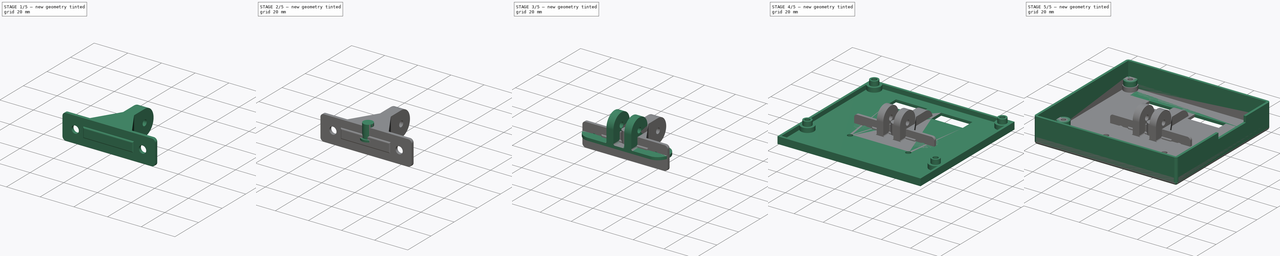
[diagram: build sequence overview — one tinted view per stage of 5, left to right]
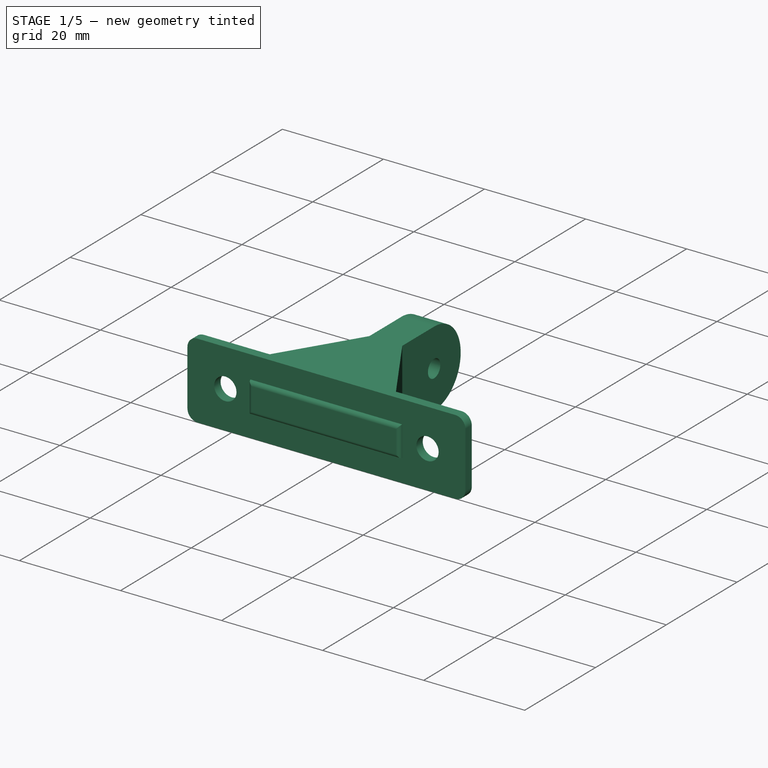
[diagram: stage 1 of 5 — iso view after this stage's code; geometry added in this stage tinted green]
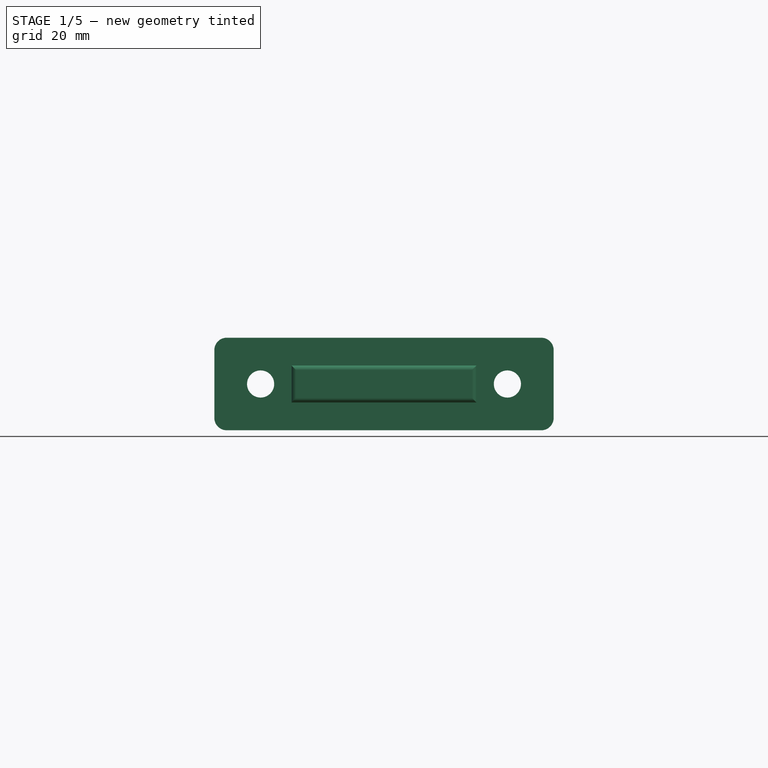
[diagram: stage 1 of 5 — front view after this stage's code; geometry added in this stage tinted green]
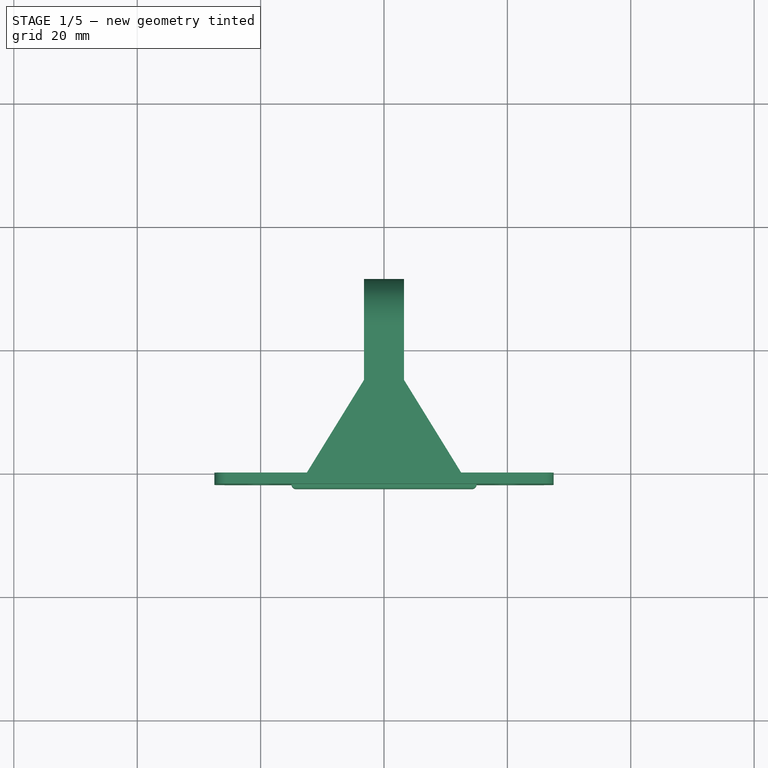
[diagram: stage 1 of 5 — top view after this stage's code; geometry added in this stage tinted green]
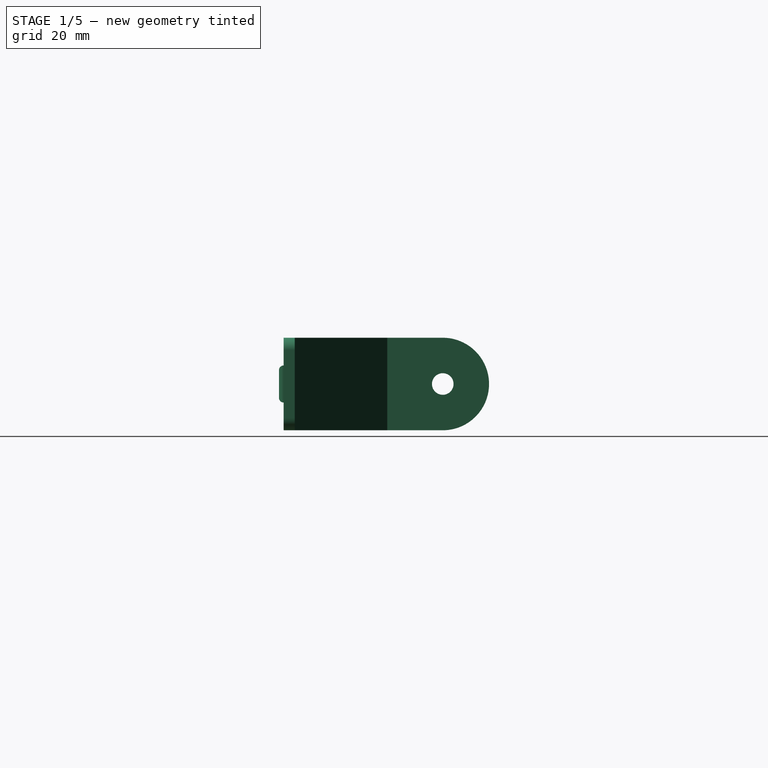
[diagram: stage 1 of 5 — right view after this stage's code; geometry added in this stage tinted green]
FCSTD DOCUMENT  (FreeCAD 0.16R)
Label: 12864_case
License: All rights reserved
LicenseURL: http://en.wikipedia.org/wiki/All_rights_reserved
objects: Sketcher::SketchObject×22, PartDesign::Pad×15, App::DocumentObjectGroup×7, PartDesign::Pocket×5, PartDesign::Fillet×4, Part::MultiFuse×3, Spreadsheet::Sheet×1, Part::Loft×1
note: 70 computed .brp shape members not serialized (recipe doc carries the construction recipe); baked Part::Feature solids carry a one-line shape summary decoded from their .brp

FEATURE [Sketcher::SketchObject] Sketch014  label="2020h_arm_base"
  Placement = pos=(0,0,0) rot=(1,0,0;1.5708rad)
  sketch-geometry (10):
    g0: LineSegment StartX=-25.5 StartY=7.5 StartZ=0 EndX=25.5 EndY=7.5 EndZ=0
    g1: LineSegment StartX=27.5 StartY=5.5 StartZ=0 EndX=27.5 EndY=-5.5 EndZ=0
    g2: LineSegment StartX=25.5 StartY=-7.5 StartZ=0 EndX=-25.5 EndY=-7.5 EndZ=0
    g3: LineSegment StartX=-27.5 StartY=-5.5 StartZ=0 EndX=-27.5 EndY=5.5 EndZ=0
    g4: ArcOfCircle CenterX=25.5 CenterY=-5.5 CenterZ=0 NormalX=0 NormalY=0 NormalZ=1 Radius=2 StartAngle=4.71239 EndAngle=6.28319
    g5: ArcOfCircle CenterX=-25.5 CenterY=-5.5 CenterZ=0 NormalX=0 NormalY=0 NormalZ=1 Radius=2 StartAngle=3.14159 EndAngle=4.71239
    g6: ArcOfCircle CenterX=-25.5 CenterY=5.5 CenterZ=0 NormalX=0 NormalY=0 NormalZ=1 Radius=2 StartAngle=1.5708 EndAngle=3.14159
    g7: ArcOfCircle CenterX=25.5 CenterY=5.5 CenterZ=0 NormalX=0 NormalY=0 NormalZ=1 Radius=2 StartAngle=0 EndAngle=1.5708
    g8: Circle CenterX=-20 CenterY=0 CenterZ=0 NormalX=0 NormalY=0 NormalZ=1 Radius=2.2
    g9: Circle CenterX=20 CenterY=0 CenterZ=0 NormalX=0 NormalY=0 NormalZ=1 Radius=2.2
  constraints (25):
    c: Horizontal(g2)
    c: Vertical(g1)
    c: Vertical(g3)
    c: Tangent(g1,g4) = 1.5708
    c: Tangent(g2,g4) = 1.5708
    c: Tangent(g2,g5) = 1.5708
    c: Tangent(g3,g5) = 1.5708
    c: Tangent(g0,g6) = 1.5708
    c: Tangent(g3,g6) = 1.5708
    c: Tangent(g0,g7) = 1.5708
    c: Tangent(g1,g7) = 1.5708
    c: Radius(g6) = 2
    c: Equal(g7,g6)
    c: Equal(g6,g5)
    c: Equal(g5,g4)
    c: Symmetric(g2,g0,g-1)
    c: Symmetric(g0,g0,g-2)
    c: DistanceX(g3,g1) = 55
    c: DistanceY(g2,g0) = 15
    c: PointOnObject(g8,g-1)
    c: PointOnObject(g9,g-1)
    c: Equal(g8,g9)
    c: Symmetric(g8,g9,g-2)
    c: DistanceX(g8,g9) = 40
    c: Radius(g8) = 2.2
FEATURE [PartDesign::Pad] Pad013
  Length = 1.8
  Length2 = 100
  Placement = pos=(0,0,0) rot=(1,0,0;1.5708rad)
  Sketch = -> Sketch014
  Type = 0
  expr: Length = Dimensions.PanelThickness
FEATURE [Sketcher::SketchObject] Sketch015  label="2020h_arm_base_groove"
  Placement = pos=(0,-1.8,0) rot=(1,0,0;1.5708rad)
  Support = -> Pad013 [Face12]
  sketch-geometry (4):
    g0: LineSegment StartX=-15 StartY=3 StartZ=0 EndX=15 EndY=3 EndZ=0
    g1: LineSegment StartX=15 StartY=3 StartZ=0 EndX=15 EndY=-3 EndZ=0
    g2: LineSegment StartX=15 StartY=-3 StartZ=0 EndX=-15 EndY=-3 EndZ=0
    g3: LineSegment StartX=-15 StartY=-3 StartZ=0 EndX=-15 EndY=3 EndZ=0
  constraints (12):
    c: Coincident(g0,g1)
    c: Coincident(g1,g2)
    c: Coincident(g2,g3)
    c: Coincident(g3,g0)
    c: Horizontal(g0)
    c: Horizontal(g2)
    c: Vertical(g1)
    c: Vertical(g3)
    c: Symmetric(g0,g2,g-1)
    c: Symmetric(g0,g0,g-2)
    c: DistanceX(g0,g0) = 30
    c: DistanceY(g3,g3) = 6
FEATURE [PartDesign::Pad] Pad014  label="2020H_Arm_Base_Groove"
  Length = 0.75
  Length2 = 100
  Placement = pos=(0,0,0) rot=(1,0,0;1.5708rad)
  Sketch = -> Sketch015
  Type = 0
FEATURE [PartDesign::Fillet] Fillet004
  Base = -> Pad014 [Edge36,Edge42,Edge41,Edge39]
  Placement = pos=(0,0,0) rot=(1,0,0;1.5708rad)
  Radius = 0.7499
FEATURE [Sketcher::SketchObject] Sketch016
  Placement = pos=(0,0,0) rot=(1,0,0;1.5708rad)
  sketch-geometry (4):
    g0: LineSegment StartX=-12.5 StartY=7.5 StartZ=0 EndX=12.5 EndY=7.5 EndZ=0
    g1: LineSegment StartX=12.5 StartY=7.5 StartZ=0 EndX=12.5 EndY=-7.5 EndZ=0
    g2: LineSegment StartX=12.5 StartY=-7.5 StartZ=0 EndX=-12.5 EndY=-7.5 EndZ=0
    g3: LineSegment StartX=-12.5 StartY=-7.5 StartZ=0 EndX=-12.5 EndY=7.5 EndZ=0
  constraints (13):
    c: Horizontal(g0)
    c: Horizontal(g2)
    c: Vertical(g1)
    c: Symmetric(g0,g2,g-1)
    c: Symmetric(g3,g1,g-2)
    c: DistanceX(g3,g1) = 25
    c: Coincident(g0,g1)
    c: Coincident(g0,g3)
    c: Coincident(g2,g3)
    c: Coincident(g1,g2)
    c: Equal(g0,g2)
    c: Equal(g3,g1)
    c: DistanceY(g3,g3) = 15
FEATURE [Sketcher::SketchObject] Sketch017
  Placement = pos=(0,-15,0) rot=(1,0,0;1.5708rad)
  expr: Placement.Base.y = -Dimensions.ArmLength
  sketch-geometry (4):
    g0: LineSegment StartX=-3.25 StartY=7.5 StartZ=0 EndX=3.25 EndY=7.5 EndZ=0
    g1: LineSegment StartX=3.25 StartY=7.5 StartZ=0 EndX=3.25 EndY=-7.5 EndZ=0
    g2: LineSegment StartX=3.25 StartY=-7.5 StartZ=0 EndX=-3.25 EndY=-7.5 EndZ=0
    g3: LineSegment StartX=-3.25 StartY=-7.5 StartZ=0 EndX=-3.25 EndY=7.5 EndZ=0
  constraints (12):
    c: Coincident(g0,g1)
    c: Coincident(g1,g2)
    c: Coincident(g2,g3)
    c: Coincident(g3,g0)
    c: Horizontal(g0)
    c: Horizontal(g2)
    c: Vertical(g1)
    c: Vertical(g3)
    c: Symmetric(g0,g2,g-1)
    c: Symmetric(g0,g0,g-2)
    c: DistanceX(g0,g0) = 6.5
    c: DistanceY(g3,g3) = 15
FEATURE [Part::Loft] Loft
  Closed = false
  Placement = pos=(0,0,0) rot=(0,0,1;3.14159rad)
  Ruled = true
  Sections = -> [Sketch016,Sketch017]
  Solid = true
FEATURE [Sketcher::SketchObject] Sketch018  label="2020stand_hinge"
  Placement = pos=(0,15,0) rot=(0.57735,0.57735,0.57735;2.0944rad)
  expr: Placement.Base.y = Dimensions.ArmLength
  sketch-geometry (5):
    g0: LineSegment StartX=0 StartY=7.5 StartZ=0 EndX=9 EndY=7.5 EndZ=0
    g1: LineSegment [constr] StartX=9 StartY=7.5 StartZ=0 EndX=9 EndY=-7.5 EndZ=0
    g2: LineSegment StartX=9 StartY=-7.5 StartZ=0 EndX=0 EndY=-7.5 EndZ=0
    g3: LineSegment StartX=0 StartY=-7.5 StartZ=0 EndX=0 EndY=7.5 EndZ=0
    g4: ArcOfCircle CenterX=9 CenterY=0 CenterZ=0 NormalX=0 NormalY=0 NormalZ=1 Radius=7.5 StartAngle=4.71239 EndAngle=7.85398
  constraints (15):
    c: Coincident(g0,g1)
    c: Coincident(g1,g2)
    c: Coincident(g2,g3)
    c: Coincident(g3,g0)
    c: Horizontal(g0)
    c: Horizontal(g2)
    c: Vertical(g1)
    c: PointOnObject(g0,g-2)
    c: PointOnObject(g2,g-2)
    c: DistanceY(g3,g3) = 15
    c: Symmetric(g0,g2,g-1)
    c: DistanceX(g0,g0) = 9
    c: PointOnObject(g4,g1)
    c: Coincident(g4,g0)
    c: Coincident(g1,g4)
FEATURE [PartDesign::Pad] Pad015
  Length = 6.5
  Length2 = 100
  Midplane = true
  Placement = pos=(0,15,0) rot=(0.57735,0.57735,0.57735;2.0944rad)
  Sketch = -> Sketch018
  Type = 0
FEATURE [Sketcher::SketchObject] Sketch019  label="2020stand_hingehole"
  ExternalGeometry = -> [Pad015]
  Placement = pos=(3.25,15,0) rot=(0.57735,0.57735,0.57735;2.0944rad)
  Support = -> Pad015 [Face6]
  sketch-geometry (2):
    g0: LineSegment [constr] StartX=9 StartY=7.5 StartZ=0 EndX=9 EndY=-7.5 EndZ=0
    g1: Circle CenterX=9 CenterY=0 CenterZ=0 NormalX=0 NormalY=0 NormalZ=1 Radius=1.75
  constraints (6):
    c: Coincident(g0,g-4)
    c: Vertical(g0)
    c: PointOnObject(g1,g0)
    c: PointOnObject(g1,g-1)
    c: Radius(g1) = 1.75
    c: Coincident(g0,g-3)
FEATURE [PartDesign::Pocket] Pocket003
  Length = 5
  Placement = pos=(0,15,0) rot=(0.57735,0.57735,0.57735;2.0944rad)
  Sketch = -> Sketch019
  Type = 2
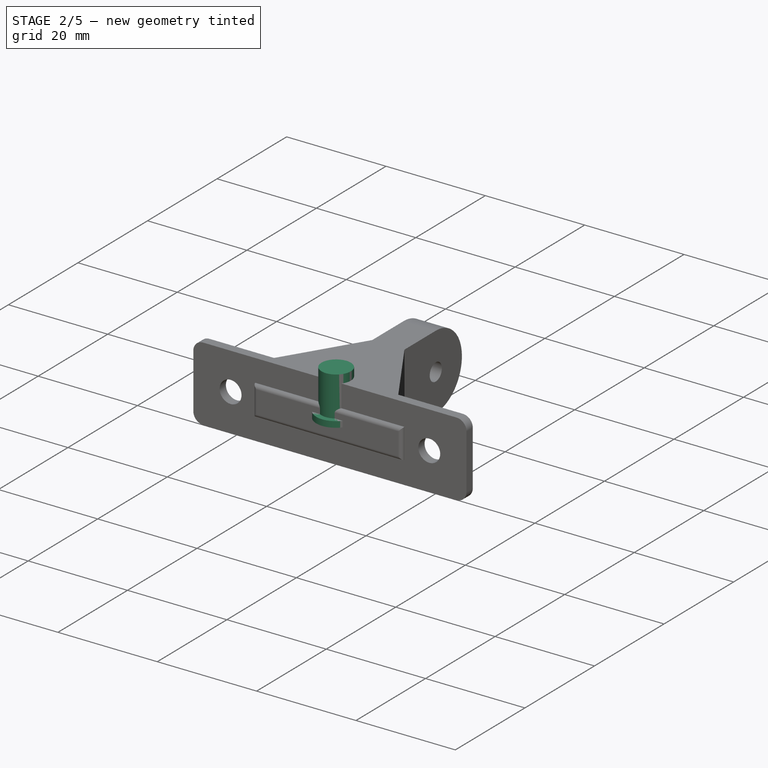
[diagram: stage 2 of 5 — iso view after this stage's code; geometry added in this stage tinted green]
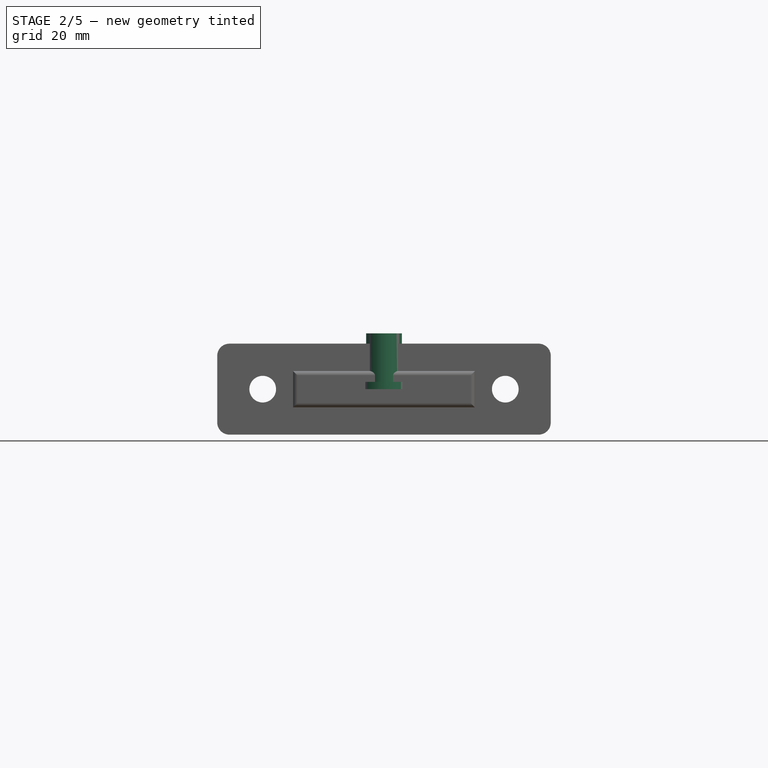
[diagram: stage 2 of 5 — front view after this stage's code; geometry added in this stage tinted green]
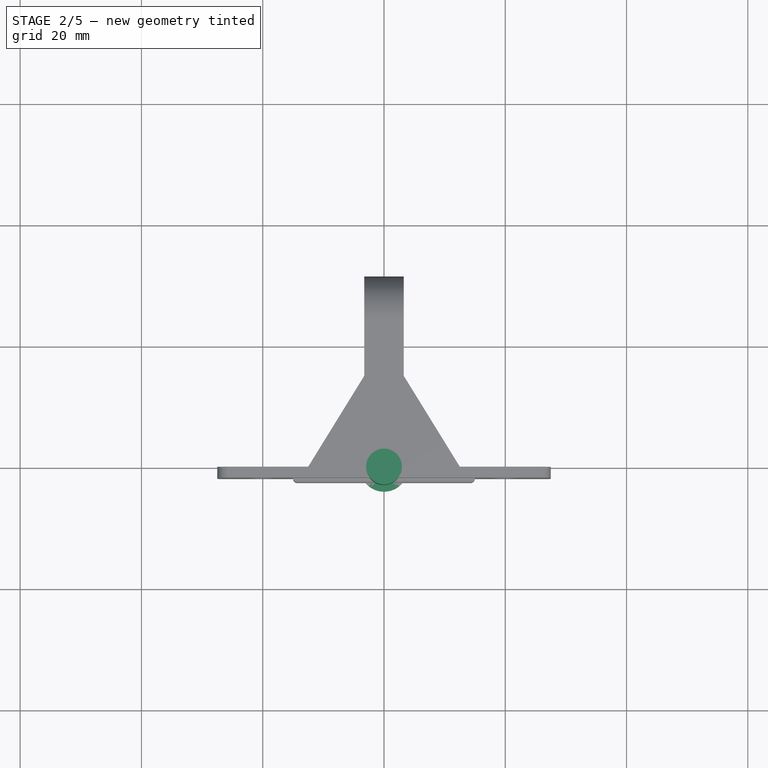
[diagram: stage 2 of 5 — top view after this stage's code; geometry added in this stage tinted green]
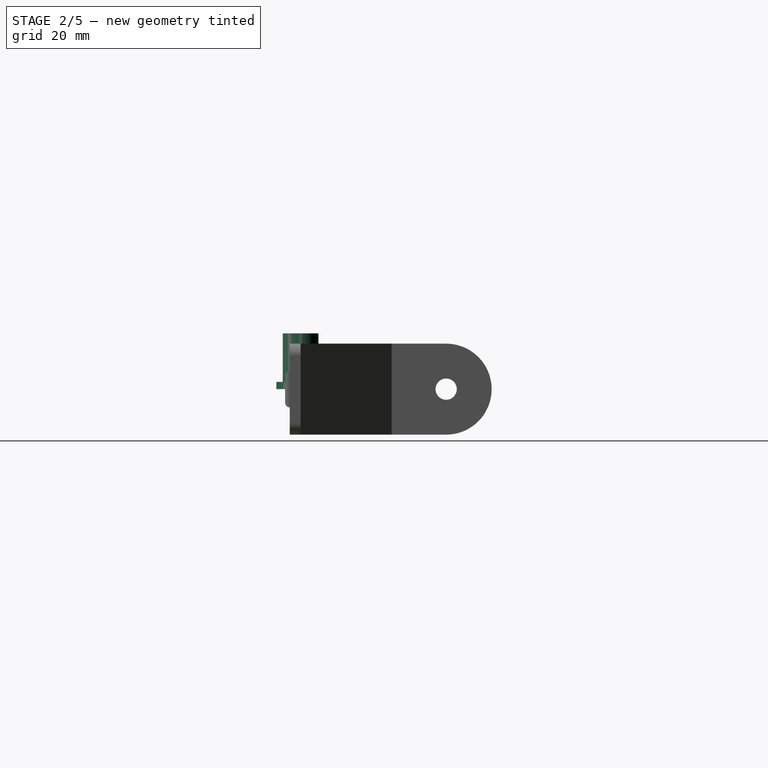
[diagram: stage 2 of 5 — right view after this stage's code; geometry added in this stage tinted green]
FEATURE [Part::MultiFuse] Fusion001
  Shapes = -> [Loft,Fillet004]
FEATURE [App::DocumentObjectGroup] Group004  label="Adapter"
  Group = -> [Pad012,Pocket001,Fusion,Fillet003]
FEATURE [Sketcher::SketchObject] Sketch020
  sketch-geometry (1):
    g0: Circle CenterX=0 CenterY=0 CenterZ=0 NormalX=0 NormalY=0 NormalZ=1 Radius=4
  constraints (2):
    c: Coincident(g0,g-1)
    c: Radius(g0) = 4
FEATURE [PartDesign::Pad] Pad016
  Length = 1.2
  Length2 = 100
  Sketch = -> Sketch020
  Type = 0
FEATURE [Sketcher::SketchObject] Sketch021
  Placement = pos=(0,0,1.2) rot=(0,0,1;0rad)
  Support = -> Pad016 [Face3]
  sketch-geometry (1):
    g0: Circle CenterX=0 CenterY=0 CenterZ=0 NormalX=0 NormalY=0 NormalZ=1 Radius=2.95
  constraints (2):
    c: Coincident(g0,g-1)
    c: Radius(g0) = 2.95
FEATURE [PartDesign::Pad] Pad017
  Length = 8
  Length2 = 100
  Sketch = -> Sketch021
  Type = 0
FEATURE [Sketcher::SketchObject] Sketch022
  Placement = pos=(0,0,0) rot=(1,0,0;3.14159rad)
  Support = -> Pad017 [Face2]
  sketch-geometry (1):
    g0: Circle CenterX=0 CenterY=0 CenterZ=0 NormalX=0 NormalY=0 NormalZ=1 Radius=2.5
  constraints (2):
    c: Coincident(g0,g-1)
    c: Radius(g0) = 2.5
FEATURE [PartDesign::Pocket] Pocket004
  Length = 1
  Sketch = -> Sketch022
  Type = 0
FEATURE [App::DocumentObjectGroup] Group006  label="ResetButton"
  Group = -> [Pad016,Pad017,Pocket004]
FEATURE [Part::MultiFuse] Fusion002
  Shapes = -> [Pocket003,Fusion001]
FEATURE [App::DocumentObjectGroup] Group005  label="Arm"
  Group = -> [Pad013,Pad014,Pad015,Fusion002]
FEATURE [App::DocumentObjectGroup] Group003  label="2020"
  Group = -> [Group004,Group005]
FEATURE [App::DocumentObjectGroup] Group002  label="Stand"
  Group = -> [Group003]
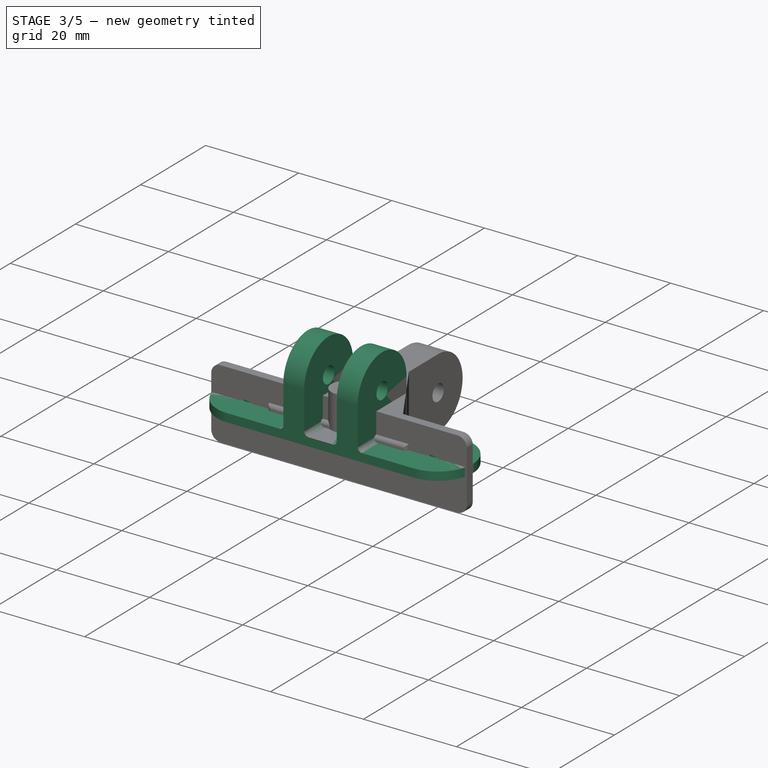
[diagram: stage 3 of 5 — iso view after this stage's code; geometry added in this stage tinted green]
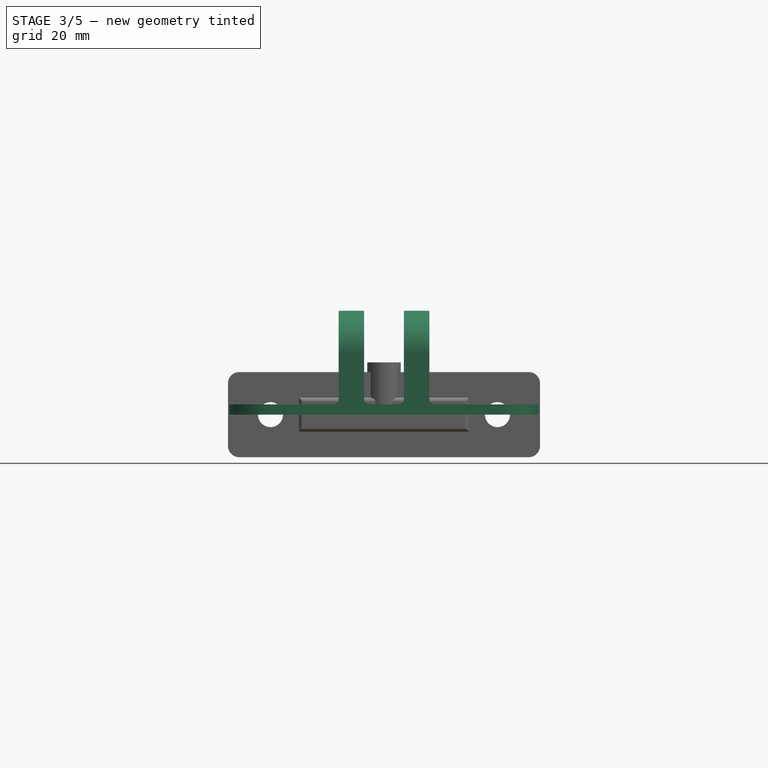
[diagram: stage 3 of 5 — front view after this stage's code; geometry added in this stage tinted green]
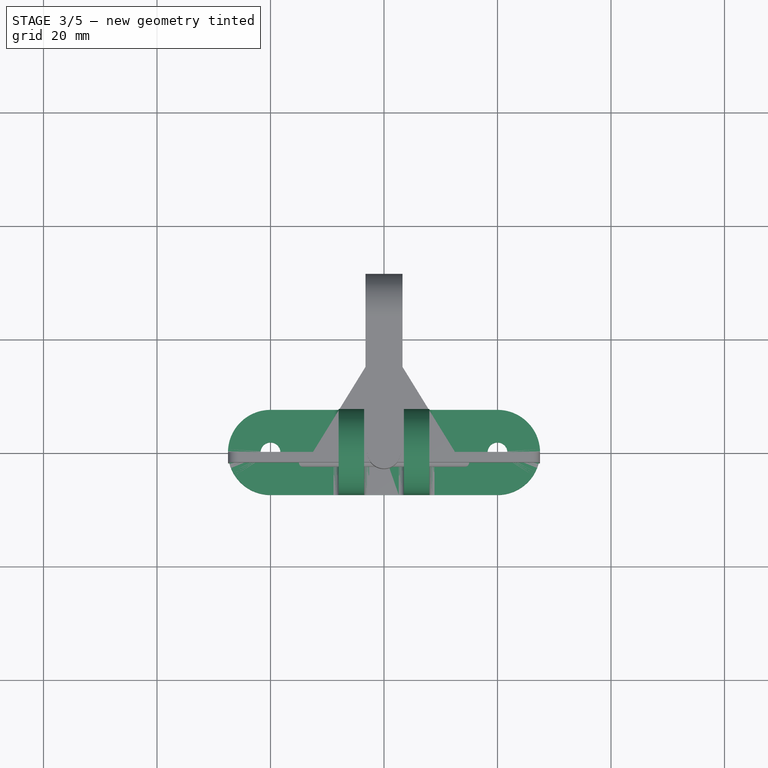
[diagram: stage 3 of 5 — top view after this stage's code; geometry added in this stage tinted green]
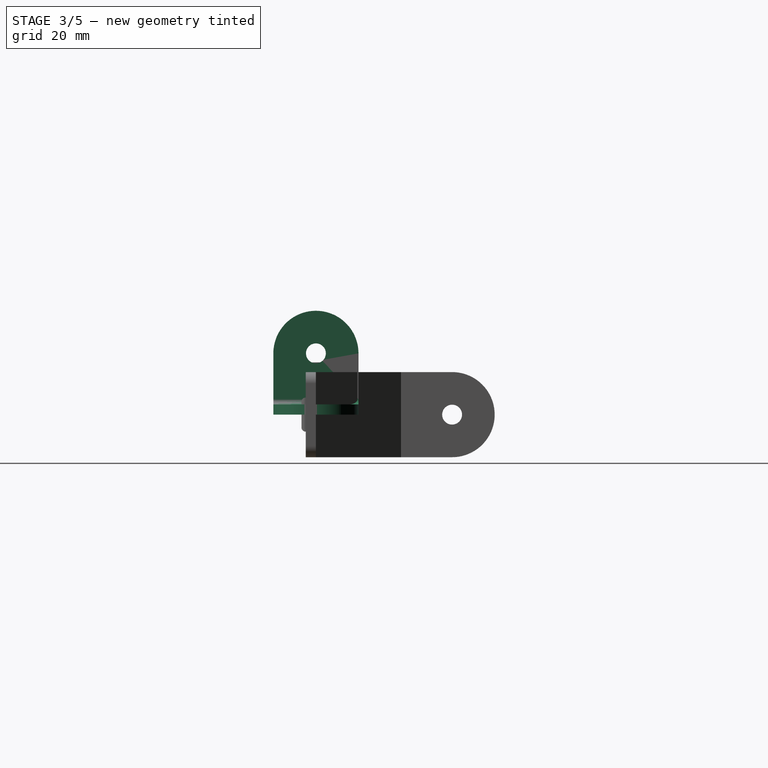
[diagram: stage 3 of 5 — right view after this stage's code; geometry added in this stage tinted green]
FEATURE [App::DocumentObjectGroup] Group001  label="Back"
  Group = -> [Pad006,Pad007,Pad008,Pad009,Pad010,Fillet002]
FEATURE [Sketcher::SketchObject] Sketch010  label="backjoin"
  sketch-geometry (8):
    g0: Circle CenterX=-20 CenterY=0 CenterZ=0 NormalX=0 NormalY=0 NormalZ=1 Radius=1.75
    g1: Circle CenterX=20 CenterY=0 CenterZ=0 NormalX=0 NormalY=0 NormalZ=1 Radius=1.75
    g2: LineSegment StartX=-20 StartY=7.5 StartZ=0 EndX=20 EndY=7.5 EndZ=0
    g3: LineSegment [constr] StartX=20 StartY=7.5 StartZ=0 EndX=20 EndY=-7.5 EndZ=0
    g4: LineSegment StartX=20 StartY=-7.5 StartZ=0 EndX=-20 EndY=-7.5 EndZ=0
    g5: LineSegment [constr] StartX=-20 StartY=-7.5 StartZ=0 EndX=-20 EndY=7.5 EndZ=0
    g6: ArcOfCircle CenterX=-20 CenterY=0 CenterZ=0 NormalX=0 NormalY=0 NormalZ=1 Radius=7.5 StartAngle=1.5708 EndAngle=4.71239
    g7: ArcOfCircle CenterX=20 CenterY=0 CenterZ=0 NormalX=0 NormalY=0 NormalZ=1 Radius=7.5 StartAngle=4.71239 EndAngle=7.85398
  constraints (22):
    c: PointOnObject(g0,g-1)
    c: PointOnObject(g1,g-1)
    c: Equal(g0,g1)
    c: Radius(g0) = 1.75
    c: Coincident(g2,g3)
    c: Coincident(g3,g4)
    c: Coincident(g4,g5)
    c: Coincident(g5,g2)
    c: Horizontal(g4)
    c: Vertical(g3)
    c: Vertical(g5)
    c: Symmetric(g2,g2,g-2)
    c: DistanceX(g2,g2) = 40
    c: PointOnObject(g0,g5)
    c: PointOnObject(g1,g3)
    c: DistanceY(g5,g5) = 15
    c: Coincident(g6,g0)
    c: Coincident(g6,g2)
    c: Coincident(g6,g4)
    c: Coincident(g7,g1)
    c: Coincident(g7,g2)
    c: Coincident(g7,g3)
FEATURE [PartDesign::Pad] Pad011
  Length = 1.8
  Length2 = 100
  Sketch = -> Sketch010
  Type = 0
  expr: Length = Dimensions.PanelThickness
FEATURE [Sketcher::SketchObject] Sketch011  label="2020fix_hingebase"
  Placement = pos=(0,0,1.8) rot=(0.57735,0.57735,0.57735;2.0944rad)
  expr: Placement.Base.z = Dimensions.PanelThickness
  sketch-geometry (5):
    g0: LineSegment StartX=-7.5 StartY=0 StartZ=0 EndX=7.5 EndY=0 EndZ=0
    g1: LineSegment StartX=7.5 StartY=0 StartZ=0 EndX=7.5 EndY=9 EndZ=0
    g2: LineSegment [constr] StartX=7.5 StartY=9 StartZ=0 EndX=-7.5 EndY=9 EndZ=0
    g3: LineSegment StartX=-7.5 StartY=9 StartZ=0 EndX=-7.5 EndY=0 EndZ=0
    g4: ArcOfCircle CenterX=0 CenterY=9 CenterZ=0 NormalX=0 NormalY=0 NormalZ=1 Radius=7.5 StartAngle=0 EndAngle=3.14159
  constraints (15):
    c: Coincident(g0,g1)
    c: Coincident(g1,g2)
    c: Coincident(g2,g3)
    c: Coincident(g3,g0)
    c: Horizontal(g0)
    c: Horizontal(g2)
    c: Vertical(g1)
    c: Vertical(g3)
    c: PointOnObject(g0,g-1)
    c: Symmetric(g0,g0,g-2)
    c: PointOnObject(g4,g2)
    c: Coincident(g4,g2)
    c: Coincident(g4,g1)
    c: DistanceX(g0,g0) = 15
    c: DistanceY(g3,g3) = 9
FEATURE [PartDesign::Pad] Pad012
  Length = 16
  Length2 = 100
  Midplane = true
  Placement = pos=(0,0,1.8) rot=(0.57735,0.57735,0.57735;2.0944rad)
  Sketch = -> Sketch011
  Type = 0
FEATURE [Sketcher::SketchObject] Sketch013  label="2020fix_hingehole"
  ExternalGeometry = -> [Pad012]
  Placement = pos=(8,0,1.8) rot=(0.57735,0.57735,0.57735;2.0944rad)
  Support = -> Pad012 [Face6]
  sketch-geometry (2):
    g0: LineSegment [constr] StartX=-7.5 StartY=9 StartZ=0 EndX=7.5 EndY=9 EndZ=0
    g1: Circle CenterX=0 CenterY=9 CenterZ=0 NormalX=0 NormalY=0 NormalZ=1 Radius=1.75
  constraints (5):
    c: PointOnObject(g1,g0)
    c: PointOnObject(g1,g-2)
    c: Radius(g1) = 1.75
    c: Coincident(g0,g-4)
    c: Coincident(g0,g-3)
FEATURE [PartDesign::Pocket] Pocket001
  Length = 5
  Placement = pos=(0,0,1.8) rot=(0.57735,0.57735,0.57735;2.0944rad)
  Sketch = -> Sketch013
  Type = 1
FEATURE [Sketcher::SketchObject] Sketch012  label="2020fix_hingecavity"
  ExternalGeometry = -> [Pad012]
  Placement = pos=(0,0,1.8) rot=(0.707107,0.707107,0;3.14159rad)
  Support = -> Pocket001 [Face1]
  sketch-geometry (4):
    g0: LineSegment StartX=-7.5 StartY=3.5 StartZ=0 EndX=7.5 EndY=3.5 EndZ=0
    g1: LineSegment StartX=7.5 StartY=3.5 StartZ=0 EndX=7.5 EndY=-3.5 EndZ=0
    g2: LineSegment StartX=7.5 StartY=-3.5 StartZ=0 EndX=-7.5 EndY=-3.5 EndZ=0
    g3: LineSegment StartX=-7.5 StartY=-3.5 StartZ=0 EndX=-7.5 EndY=3.5 EndZ=0
  constraints (12):
    c: Coincident(g0,g1)
    c: Coincident(g1,g2)
    c: Coincident(g2,g3)
    c: Coincident(g3,g0)
    c: Horizontal(g0)
    c: Horizontal(g2)
    c: Vertical(g1)
    c: Vertical(g3)
    c: PointOnObject(g0,g-3)
    c: PointOnObject(g1,g-4)
    c: Symmetric(g0,g2,g-1)
    c: DistanceY(g2,g0) = 7
FEATURE [PartDesign::Pocket] Pocket002
  Length = 5
  Placement = pos=(0,0,1.8) rot=(0.57735,0.57735,0.57735;2.0944rad)
  Sketch = -> Sketch012
  Type = 2
FEATURE [Part::MultiFuse] Fusion
  Shapes = -> [Pad011,Pocket002]
FEATURE [PartDesign::Fillet] Fillet003
  Base = -> Fusion [Edge22,Edge30,Edge31,Edge28]
  Radius = 0.9
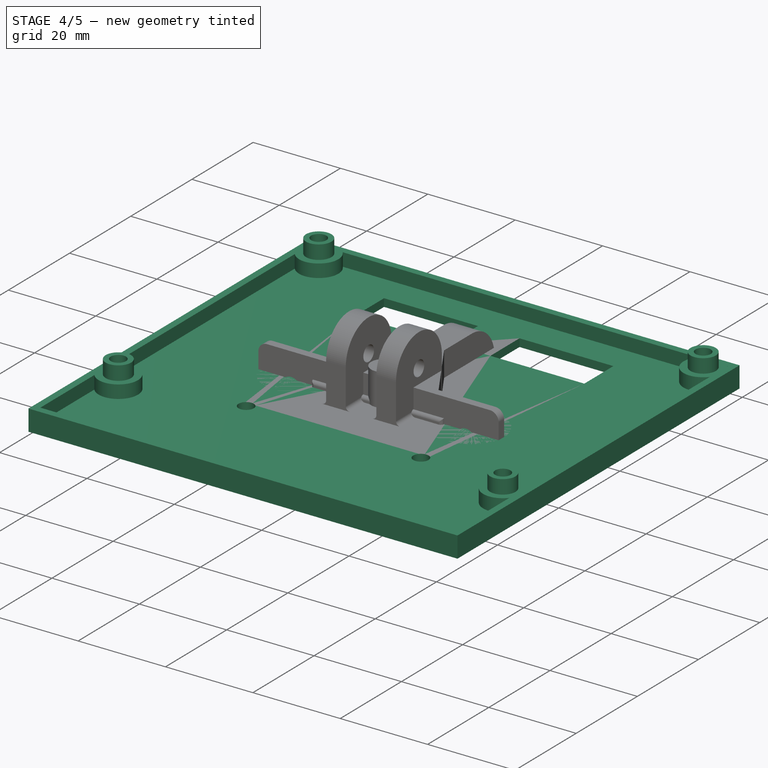
[diagram: stage 4 of 5 — iso view after this stage's code; geometry added in this stage tinted green]
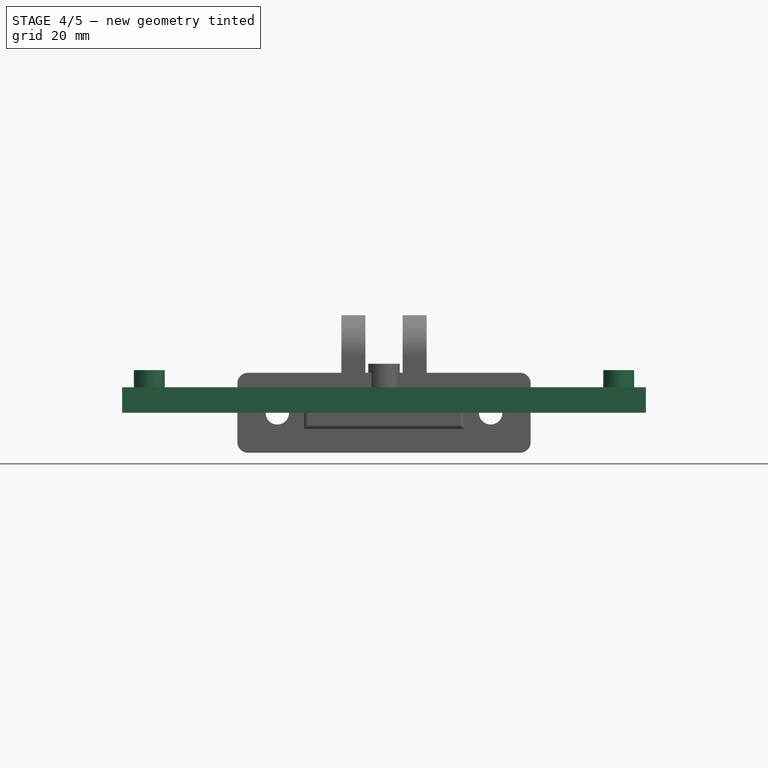
[diagram: stage 4 of 5 — front view after this stage's code; geometry added in this stage tinted green]
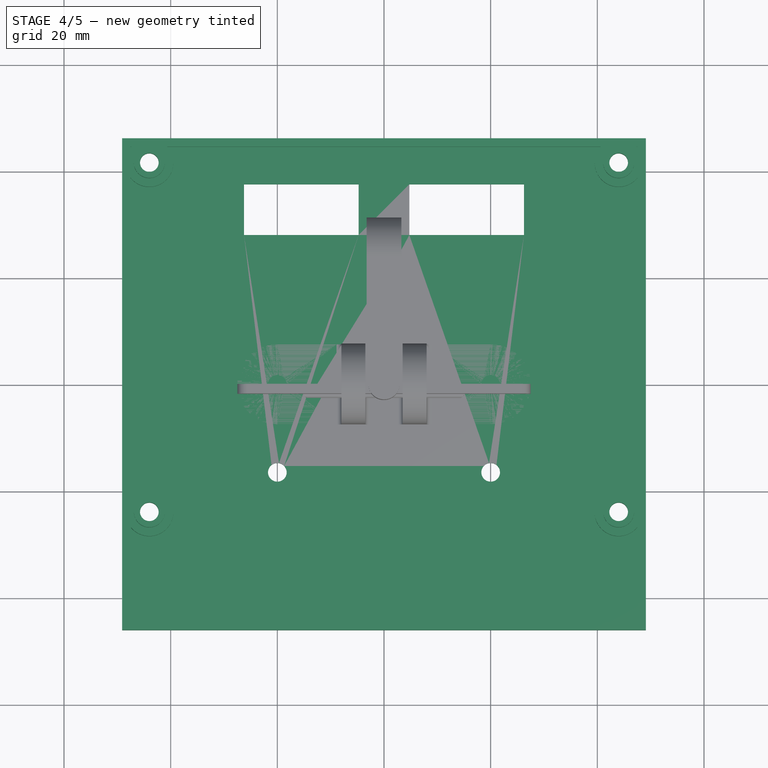
[diagram: stage 4 of 5 — top view after this stage's code; geometry added in this stage tinted green]
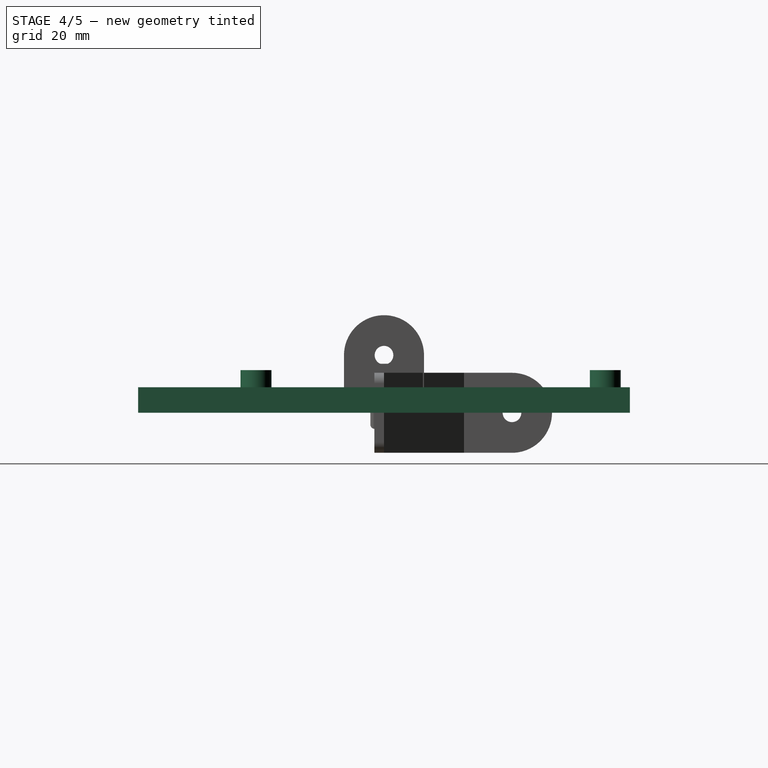
[diagram: stage 4 of 5 — right view after this stage's code; geometry added in this stage tinted green]
FEATURE [App::DocumentObjectGroup] Group  label="Front"
  Group = -> [Pad,Pad001,Pad002,Fillet,Pocket]
FEATURE [Sketcher::SketchObject] Sketch007  label="backpanel"
  expr: Constraints[0] = Dimensions.HoleDistanceH
  expr: Constraints[10] = Dimensions.HoleDistanceV
  expr: Constraints[39] = Dimensions.LCDHeight
  expr: Constraints[40] = Dimensions.LCDWidth
  expr: Constraints[20] = Dimensions.PCBHeight + Dimensions.PCBGap * 2 + Dimensions.WallThickness * 2
  expr: Constraints[19] = Dimensions.PCBWidth + Dimensions.PCBGap * 2 + Dimensions.WallThickness * 2
  expr: Constraints[30] = Dimensions.PCBHeight
  expr: Constraints[29] = Dimensions.PCBWidth
  expr: Constraints[9] = Dimensions.PCBHeight / 2 - Dimensions.HoleDistanceTop
  sketch-geometry (28):
    g0: Circle CenterX=-44 CenterY=41.5 CenterZ=0 NormalX=0 NormalY=0 NormalZ=1 Radius=3
    g1: Circle CenterX=44 CenterY=41.5 CenterZ=0 NormalX=0 NormalY=0 NormalZ=1 Radius=3
    g2: Circle CenterX=44 CenterY=-24 CenterZ=0 NormalX=0 NormalY=0 NormalZ=1 Radius=3
    g3: Circle CenterX=-44 CenterY=-24 CenterZ=0 NormalX=0 NormalY=0 NormalZ=1 Radius=3
    g4: LineSegment [constr] StartX=-44 StartY=41.5 StartZ=0 EndX=44 EndY=41.5 EndZ=0
    g5: LineSegment [constr] StartX=-44 StartY=-24 StartZ=0 EndX=44 EndY=-24 EndZ=0
    g6: LineSegment StartX=-49.1 StartY=46.1 StartZ=0 EndX=49.1 EndY=46.1 EndZ=0
    g7: LineSegment StartX=49.1 StartY=46.1 StartZ=0 EndX=49.1 EndY=-46.1 EndZ=0
    g8: LineSegment StartX=49.1 StartY=-46.1 StartZ=0 EndX=-49.1 EndY=-46.1 EndZ=0
    g9: LineSegment StartX=-49.1 StartY=-46.1 StartZ=0 EndX=-49.1 EndY=46.1 EndZ=0
    g10: LineSegment [constr] StartX=-46.5 StartY=43.5 StartZ=0 EndX=46.5 EndY=43.5 EndZ=0
    g11: LineSegment [constr] StartX=46.5 StartY=43.5 StartZ=0 EndX=46.5 EndY=-43.5 EndZ=0
    g12: LineSegment [constr] StartX=46.5 StartY=-43.5 StartZ=0 EndX=-46.5 EndY=-43.5 EndZ=0
    g13: LineSegment [constr] StartX=-46.5 StartY=-43.5 StartZ=0 EndX=-46.5 EndY=43.5 EndZ=0
    g14: LineSegment [constr] StartX=-39 StartY=34.5 StartZ=0 EndX=39 EndY=34.5 EndZ=0
    g15: LineSegment [constr] StartX=39 StartY=34.5 StartZ=0 EndX=39 EndY=-16.5 EndZ=0
    g16: LineSegment [constr] StartX=39 StartY=-16.5 StartZ=0 EndX=-39 EndY=-16.5 EndZ=0
    g17: LineSegment [constr] StartX=-39 StartY=-16.5 StartZ=0 EndX=-39 EndY=34.5 EndZ=0
    g18: LineSegment StartX=4.75 StartY=37.5 StartZ=0 EndX=26.25 EndY=37.5 EndZ=0
    g19: LineSegment StartX=26.25 StartY=37.5 StartZ=0 EndX=26.25 EndY=28 EndZ=0
    g20: LineSegment StartX=26.25 StartY=28 StartZ=0 EndX=4.75 EndY=28 EndZ=0
    g21: LineSegment StartX=4.75 StartY=28 StartZ=0 EndX=4.75 EndY=37.5 EndZ=0
    g22: LineSegment StartX=-26.25 StartY=37.5 StartZ=0 EndX=-4.75 EndY=37.5 EndZ=0
    g23: LineSegment StartX=-4.75 StartY=37.5 StartZ=0 EndX=-4.75 EndY=28 EndZ=0
    g24: LineSegment StartX=-4.75 StartY=28 StartZ=0 EndX=-26.25 EndY=28 EndZ=0
    g25: LineSegment StartX=-26.25 StartY=28 StartZ=0 EndX=-26.25 EndY=37.5 EndZ=0
    g26: Circle CenterX=-20 CenterY=-16.5 CenterZ=0 NormalX=0 NormalY=0 NormalZ=1 Radius=1.75
    g27: Circle CenterX=20 CenterY=-16.5 CenterZ=0 NormalX=0 NormalY=0 NormalZ=1 Radius=1.75
  constraints (80):
    c: DistanceX(g0,g1) = 88
    c: Coincident(g4,g0)
    c: Coincident(g4,g1)
    c: Coincident(g5,g3)
    c: Coincident(g5,g2)
    c: Equal(g4,g5)
    c: Equal(g0,g1)
    c: Equal(g1,g2)
    c: Equal(g2,g3)
    c: DistanceY(g-1,g0) = 41.5
    c: DistanceY(g3,g0) = 65.5
    c: Coincident(g6,g7)
    c: Coincident(g7,g8)
    c: Coincident(g8,g9)
    c: Coincident(g9,g6)
    c: Horizontal(g6)
    c: Horizontal(g8)
    c: Vertical(g7)
    c: Vertical(g9)
    c: DistanceX(g6,g6) = 98.2
    c: DistanceY(g9,g9) = 92.2
    c: Coincident(g10,g11)
    c: Coincident(g11,g12)
    c: Coincident(g12,g13)
    c: Coincident(g13,g10)
    c: Horizontal(g10)
    c: Horizontal(g12)
    c: Vertical(g11)
    c: Vertical(g13)
    c: DistanceX(g10,g10) = 93
    c: DistanceY(g13,g13) = 87
    c: Coincident(g14,g15)
    c: Coincident(g15,g16)
    c: Coincident(g16,g17)
    c: Coincident(g17,g14)
    c: Horizontal(g14)
    c: Horizontal(g16)
    c: Vertical(g15)
    c: Vertical(g17)
    c: DistanceY(g17,g17) = 51
    c: DistanceX(g14,g14) = 78
    c: DistanceY(g14,g10) = 9
    c: Symmetric(g0,g1,g-2)
    c: Symmetric(g3,g2,g-2)
    c: Symmetric(g12,g11,g-2)
    c: Symmetric(g6,g6,g-2)
    c: Symmetric(g6,g8,g-1)
    c: Symmetric(g10,g10,g-2)
    c: Symmetric(g10,g12,g-1)
    c: Symmetric(g14,g14,g-2)
    c: Radius(g0) = 3
    c: Coincident(g18,g19)
    c: Coincident(g19,g20)
    c: Coincident(g20,g21)
    c: Coincident(g21,g18)
    c: Horizontal(g18)
    c: Horizontal(g20)
    c: Vertical(g19)
    c: Vertical(g21)
    c: DistanceX(g18,g18) = 21.5
    c: DistanceY(g21,g21) = 9.5
    c: DistanceY(g18,g10) = 6
    c: Coincident(g22,g23)
    c: Coincident(g23,g24)
    c: Coincident(g24,g25)
    c: Coincident(g25,g22)
    c: Horizontal(g22)
    c: Horizontal(g24)
    c: Vertical(g23)
    c: Vertical(g25)
    c: Equal(g22,g18)
    c: Equal(g23,g21)
    c: Symmetric(g22,g18,g-2)
    c: DistanceX(g23,g20) = 9.5
    c: PointOnObject(g27,g16)
    c: PointOnObject(g26,g16)
    c: Symmetric(g26,g27,g-2)
    c: Equal(g26,g27)
    c: Radius(g26) = 1.75
    c: DistanceX(g26,g27) = 40
FEATURE [PartDesign::Pad] Pad006
  Length = 1.8
  Length2 = 100
  Sketch = -> Sketch007
  Type = 0
  expr: Length = Spreadsheet.PanelThickness
FEATURE [Sketcher::SketchObject] Sketch005  label="backwalls"
  Placement = pos=(0,0,1.8) rot=(0,0,1;0rad)
  Support = -> Pad006 [Face20]
  expr: Constraints[23] = Dimensions.PCBHeight + 2 * Dimensions.PCBGap
  expr: Constraints[22] = Dimensions.PCBWidth + 2 * Dimensions.PCBGap
  expr: Constraints[11] = Dimensions.PCBHeight + 2 * Dimensions.PCBGap + 2 * Dimensions.WallThickness
  expr: Constraints[10] = Dimensions.PCBWidth + 2 * Dimensions.PCBGap + 2 * Dimensions.WallThickness
  sketch-geometry (8):
    g0: LineSegment StartX=-49.1 StartY=46.1 StartZ=0 EndX=49.1 EndY=46.1 EndZ=0
    g1: LineSegment StartX=49.1 StartY=46.1 StartZ=0 EndX=49.1 EndY=-46.1 EndZ=0
    g2: LineSegment StartX=49.1 StartY=-46.1 StartZ=0 EndX=-49.1 EndY=-46.1 EndZ=0
    g3: LineSegment StartX=-49.1 StartY=-46.1 StartZ=0 EndX=-49.1 EndY=46.1 EndZ=0
    g4: LineSegment StartX=-47.5 StartY=44.5 StartZ=0 EndX=47.5 EndY=44.5 EndZ=0
    g5: LineSegment StartX=47.5 StartY=44.5 StartZ=0 EndX=47.5 EndY=-44.5 EndZ=0
    g6: LineSegment StartX=47.5 StartY=-44.5 StartZ=0 EndX=-47.5 EndY=-44.5 EndZ=0
    g7: LineSegment StartX=-47.5 StartY=-44.5 StartZ=0 EndX=-47.5 EndY=44.5 EndZ=0
  constraints (24):
    c: Coincident(g0,g1)
    c: Coincident(g1,g2)
    c: Coincident(g2,g3)
    c: Coincident(g3,g0)
    c: Horizontal(g0)
    c: Horizontal(g2)
    c: Vertical(g1)
    c: Vertical(g3)
    c: Symmetric(g0,g0,g-2)
    c: Symmetric(g0,g2,g-1)
    c: DistanceX(g0,g0) = 98.2
    c: DistanceY(g3,g3) = 92.2
    c: Coincident(g4,g5)
    c: Coincident(g5,g6)
    c: Coincident(g6,g7)
    c: Coincident(g7,g4)
    c: Horizontal(g4)
    c: Horizontal(g6)
    c: Vertical(g5)
    c: Vertical(g7)
    c: Symmetric(g4,g4,g-2)
    c: Symmetric(g4,g6,g-1)
    c: DistanceX(g4,g4) = 95
    c: DistanceY(g7,g7) = 89
FEATURE [PartDesign::Pad] Pad007  label="BackWalls"
  Length = 3
  Length2 = 100
  Sketch = -> Sketch005
  Type = 0
FEATURE [Sketcher::SketchObject] Sketch008  label="backnuts1"
  Placement = pos=(0,0,1.8) rot=(0,0,1;0rad)
  Support = -> Pad007 [Face24]
  expr: Constraints[2] = Dimensions.HoleDistanceH
  expr: Constraints[21] = Dimensions.HoleDistanceV
  expr: Constraints[20] = Dimensions.PCBHeight / 2 - Dimensions.HoleDistanceTop
  sketch-geometry (10):
    g0: Circle CenterX=-44 CenterY=41.5 CenterZ=0 NormalX=0 NormalY=0 NormalZ=1 Radius=4.5
    g1: Circle CenterX=44 CenterY=41.5 CenterZ=0 NormalX=0 NormalY=0 NormalZ=1 Radius=4.5
    g2: Circle CenterX=44 CenterY=-24 CenterZ=0 NormalX=0 NormalY=0 NormalZ=1 Radius=4.5
    g3: Circle CenterX=-44 CenterY=-24 CenterZ=0 NormalX=0 NormalY=0 NormalZ=1 Radius=4.5
    g4: LineSegment [constr] StartX=-44 StartY=41.5 StartZ=0 EndX=44 EndY=41.5 EndZ=0
    g5: LineSegment [constr] StartX=-44 StartY=-24 StartZ=0 EndX=44 EndY=-24 EndZ=0
    g6: Circle CenterX=-44 CenterY=41.5 CenterZ=0 NormalX=0 NormalY=0 NormalZ=1 Radius=3
    g7: Circle CenterX=44 CenterY=41.5 CenterZ=0 NormalX=0 NormalY=0 NormalZ=1 Radius=3
    g8: Circle CenterX=44 CenterY=-24 CenterZ=0 NormalX=0 NormalY=0 NormalZ=1 Radius=3
    g9: Circle CenterX=-44 CenterY=-24 CenterZ=0 NormalX=0 NormalY=0 NormalZ=1 Radius=3
  constraints (22):
    c: Symmetric(g0,g1,g-2)
    c: Symmetric(g3,g2,g-2)
    c: DistanceX(g0,g1) = 88
    c: Coincident(g4,g0)
    c: Coincident(g4,g1)
    c: Coincident(g5,g3)
    c: Coincident(g5,g2)
    c: Equal(g4,g5)
    c: Equal(g0,g1)
    c: Equal(g1,g2)
    c: Equal(g2,g3)
    c: Radius(g0) = 4.5
    c: Coincident(g6,g0)
    c: Coincident(g7,g1)
    c: Coincident(g8,g2)
    c: Coincident(g9,g3)
    c: Equal(g6,g7)
    c: Equal(g7,g8)
    c: Equal(g8,g9)
    c: Radius(g6) = 3
    c: DistanceY(g-1,g0) = 41.5
    c: DistanceY(g3,g0) = 65.5
FEATURE [PartDesign::Pad] Pad008
  Length = 1.2
  Length2 = 100
  Sketch = -> Sketch008
  Type = 0
  expr: Length = 3 - Dimensions.PanelThickness
FEATURE [Sketcher::SketchObject] Sketch009  label="backnuts2"
  Placement = pos=(0,0,3) rot=(0,0,1;0rad)
  Support = -> Pad008 [Face45]
  expr: Constraints[2] = Dimensions.HoleDistanceH
  expr: Constraints[21] = Dimensions.HoleDistanceV
  expr: Constraints[20] = Dimensions.PCBHeight / 2 - Dimensions.HoleDistanceTop
  sketch-geometry (10):
    g0: Circle CenterX=-44 CenterY=41.5 CenterZ=0 NormalX=0 NormalY=0 NormalZ=1 Radius=4.5
    g1: Circle CenterX=44 CenterY=41.5 CenterZ=0 NormalX=0 NormalY=0 NormalZ=1 Radius=4.5
    g2: Circle CenterX=44 CenterY=-24 CenterZ=0 NormalX=0 NormalY=0 NormalZ=1 Radius=4.5
    g3: Circle CenterX=-44 CenterY=-24 CenterZ=0 NormalX=0 NormalY=0 NormalZ=1 Radius=4.5
    g4: LineSegment [constr] StartX=-44 StartY=41.5 StartZ=0 EndX=44 EndY=41.5 EndZ=0
    g5: LineSegment [constr] StartX=-44 StartY=-24 StartZ=0 EndX=44 EndY=-24 EndZ=0
    g6: Circle CenterX=-44 CenterY=41.5 CenterZ=0 NormalX=0 NormalY=0 NormalZ=1 Radius=1.75
    g7: Circle CenterX=44 CenterY=41.5 CenterZ=0 NormalX=0 NormalY=0 NormalZ=1 Radius=1.75
    g8: Circle CenterX=44 CenterY=-24 CenterZ=0 NormalX=0 NormalY=0 NormalZ=1 Radius=1.75
    g9: Circle CenterX=-44 CenterY=-24 CenterZ=0 NormalX=0 NormalY=0 NormalZ=1 Radius=1.75
  constraints (22):
    c: Symmetric(g0,g1,g-2)
    c: Symmetric(g3,g2,g-2)
    c: DistanceX(g0,g1) = 88
    c: Coincident(g4,g0)
    c: Coincident(g4,g1)
    c: Coincident(g5,g3)
    c: Coincident(g5,g2)
    c: Equal(g4,g5)
    c: Equal(g0,g1)
    c: Equal(g1,g2)
    c: Equal(g2,g3)
    c: Radius(g0) = 4.5
    c: Coincident(g6,g0)
    c: Coincident(g7,g1)
    c: Coincident(g8,g2)
    c: Coincident(g9,g3)
    c: Equal(g6,g7)
    c: Equal(g7,g8)
    c: Equal(g8,g9)
    c: Radius(g6) = 1.75
    c: DistanceY(g-1,g0) = 41.5
    c: DistanceY(g3,g0) = 65.5
FEATURE [PartDesign::Pad] Pad009
  Length = 10
  Length2 = 100
  Sketch = -> Sketch009
  Type = 3
  UpToFace = -> Pad008 [Face31]
FEATURE [Sketcher::SketchObject] Sketch006  label="backnuts3"
  Placement = pos=(0,0,4.8) rot=(0,0,1;0rad)
  Support = -> Pad009 [Face71]
  expr: Constraints[21] = Dimensions.HoleDistanceV
  expr: Constraints[2] = Dimensions.HoleDistanceH
  expr: Constraints[20] = Dimensions.PCBHeight / 2 - Dimensions.HoleDistanceTop
  sketch-geometry (10):
    g0: Circle CenterX=-44 CenterY=41.5 CenterZ=0 NormalX=0 NormalY=0 NormalZ=1 Radius=2.9
    g1: Circle CenterX=44 CenterY=41.5 CenterZ=0 NormalX=0 NormalY=0 NormalZ=1 Radius=2.9
    g2: Circle CenterX=44 CenterY=-24 CenterZ=0 NormalX=0 NormalY=0 NormalZ=1 Radius=2.9
    g3: Circle CenterX=-44 CenterY=-24 CenterZ=0 NormalX=0 NormalY=0 NormalZ=1 Radius=2.9
    g4: LineSegment [constr] StartX=-44 StartY=41.5 StartZ=0 EndX=44 EndY=41.5 EndZ=0
    g5: LineSegment [constr] StartX=-44 StartY=-24 StartZ=0 EndX=44 EndY=-24 EndZ=0
    g6: Circle CenterX=-44 CenterY=41.5 CenterZ=0 NormalX=0 NormalY=0 NormalZ=1 Radius=1.75
    g7: Circle CenterX=44 CenterY=41.5 CenterZ=0 NormalX=0 NormalY=0 NormalZ=1 Radius=1.75
    g8: Circle CenterX=44 CenterY=-24 CenterZ=0 NormalX=0 NormalY=0 NormalZ=1 Radius=1.75
    g9: Circle CenterX=-44 CenterY=-24 CenterZ=0 NormalX=0 NormalY=0 NormalZ=1 Radius=1.75
  constraints (22):
    c: Symmetric(g0,g1,g-2)
    c: Symmetric(g3,g2,g-2)
    c: DistanceX(g0,g1) = 88
    c: Coincident(g4,g0)
    c: Coincident(g4,g1)
    c: Coincident(g5,g3)
    c: Coincident(g5,g2)
    c: Equal(g4,g5)
    c: Equal(g0,g1)
    c: Equal(g1,g2)
    c: Equal(g2,g3)
    c: Radius(g0) = 2.9
    c: Coincident(g6,g0)
    c: Coincident(g7,g1)
    c: Coincident(g8,g2)
    c: Coincident(g9,g3)
    c: Equal(g6,g7)
    c: Equal(g7,g8)
    c: Equal(g8,g9)
    c: Radius(g6) = 1.75
    c: DistanceY(g-1,g0) = 41.5
    c: DistanceY(g3,g0) = 65.5
FEATURE [PartDesign::Pad] Pad010
  Length = 3.2
  Length2 = 100
  Sketch = -> Sketch006
  Type = 0
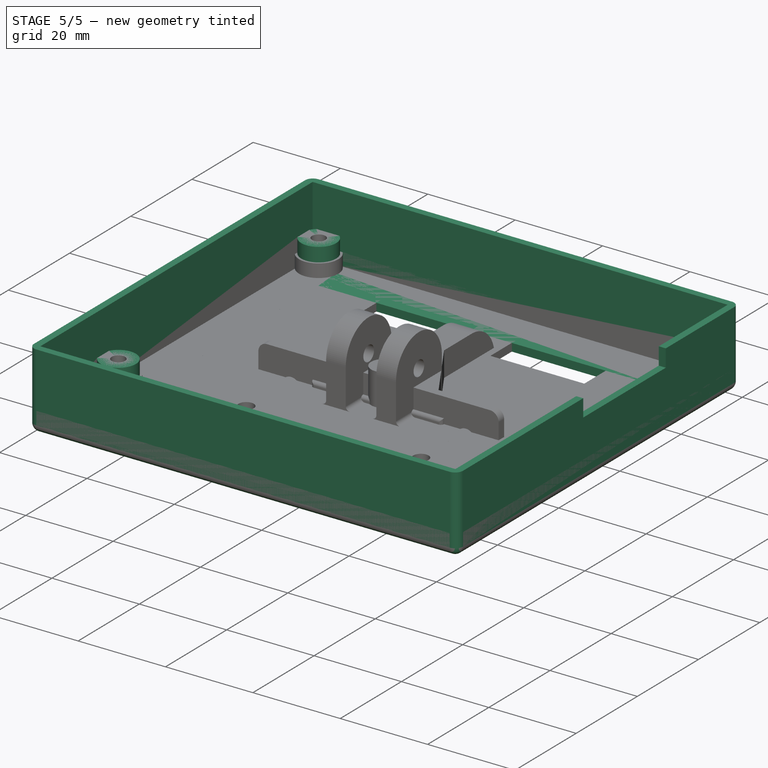
[diagram: stage 5 of 5 — iso view after this stage's code; geometry added in this stage tinted green]
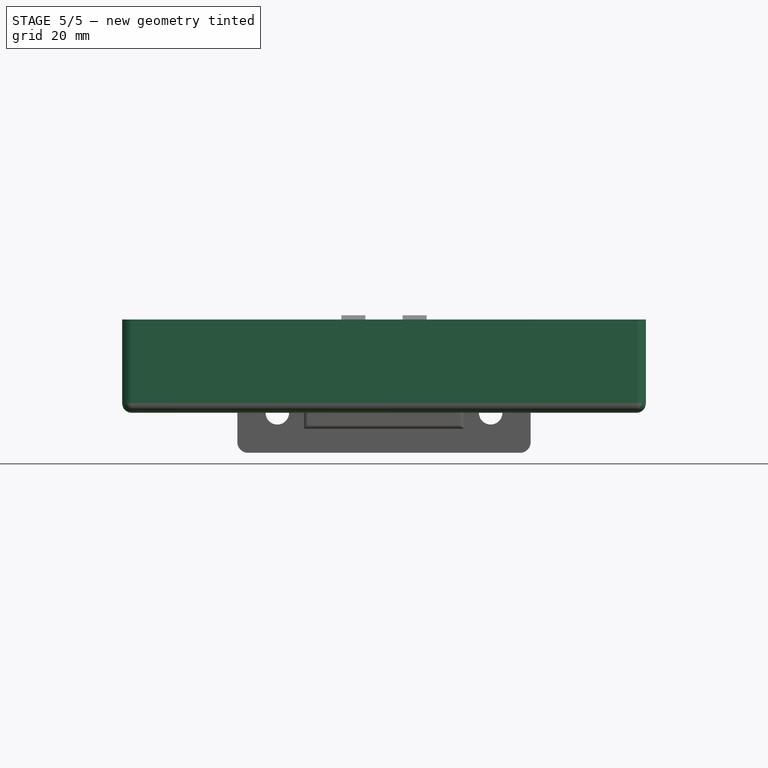
[diagram: stage 5 of 5 — front view after this stage's code; geometry added in this stage tinted green]
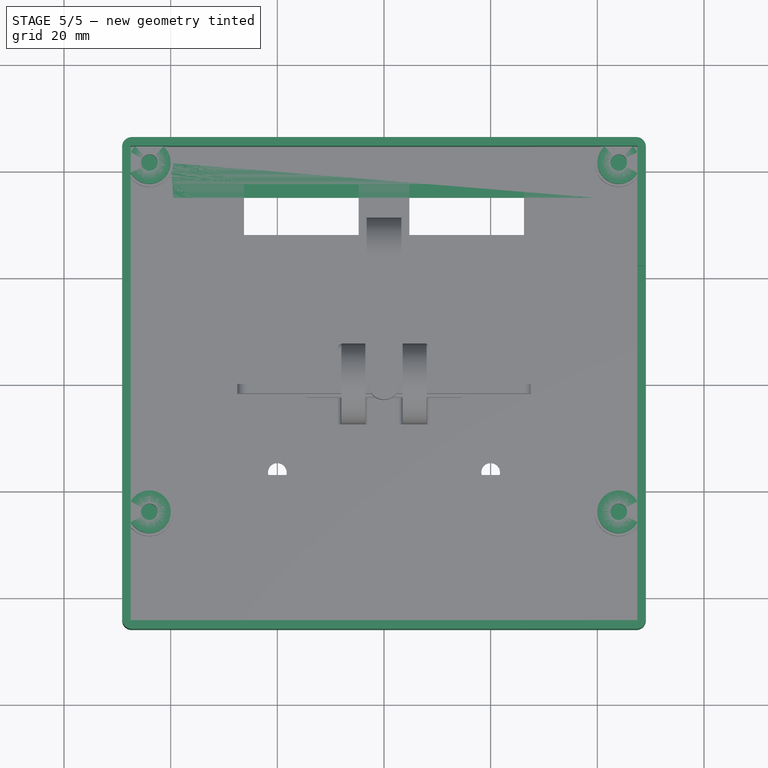
[diagram: stage 5 of 5 — top view after this stage's code; geometry added in this stage tinted green]
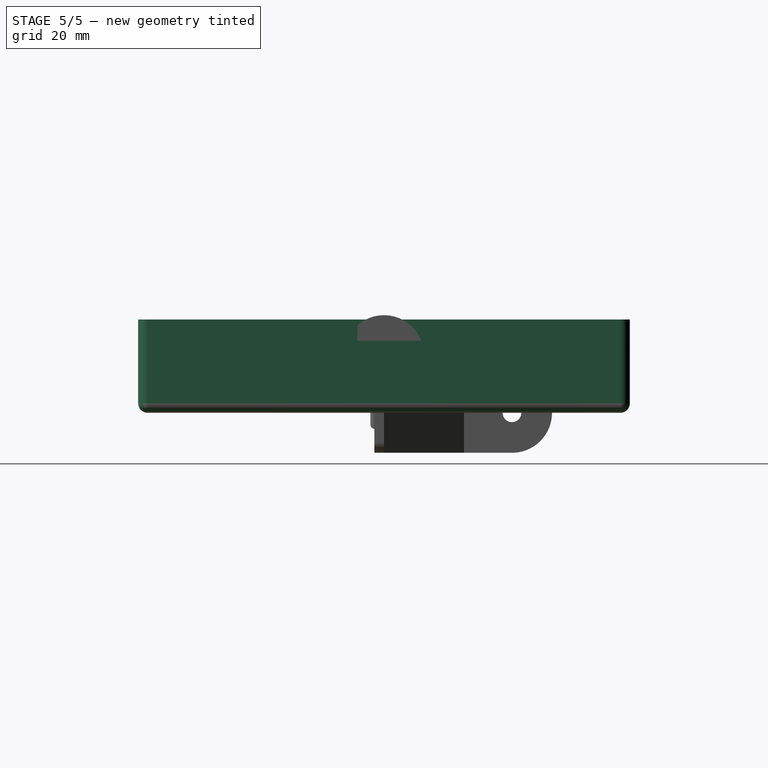
[diagram: stage 5 of 5 — right view after this stage's code; geometry added in this stage tinted green]
FEATURE [Sketcher::SketchObject] Sketch  label="frontpanel"
  expr: Constraints[93] = Dimensions.LCDHeight
  expr: Constraints[11] = Dimensions.PCBHeight + Dimensions.PCBGap * 2 + Dimensions.WallThickness * 2
  expr: Constraints[34] = Dimensions.PCBHeight
  expr: Constraints[96] = Dimensions.LCDWidth
  expr: Constraints[95] = Dimensions.LCDGap
  expr: Constraints[94] = Dimensions.LCDGap
  expr: Constraints[33] = Dimensions.PCBWidth
  expr: Constraints[22] = Dimensions.LCDHeight + Dimensions.LCDGap * 2
  expr: Constraints[21] = Dimensions.LCDWidth + Dimensions.LCDGap * 2
  expr: Constraints[10] = Dimensions.PCBWidth + Dimensions.PCBGap * 2 + Dimensions.WallThickness * 2
  sketch-geometry (34):
    g0: LineSegment StartX=-49.1 StartY=46.1 StartZ=0 EndX=49.1 EndY=46.1 EndZ=0
    g1: LineSegment StartX=49.1 StartY=46.1 StartZ=0 EndX=49.1 EndY=-46.1 EndZ=0
    g2: LineSegment StartX=49.1 StartY=-46.1 StartZ=0 EndX=-49.1 EndY=-46.1 EndZ=0
    g3: LineSegment StartX=-49.1 StartY=-46.1 StartZ=0 EndX=-49.1 EndY=46.1 EndZ=0
    g4: LineSegment StartX=-39.5 StartY=35 StartZ=0 EndX=39.5 EndY=35 EndZ=0
    g5: LineSegment StartX=39.5 StartY=35 StartZ=0 EndX=39.5 EndY=-17 EndZ=0
    g6: LineSegment StartX=39.5 StartY=-17 StartZ=0 EndX=-39.5 EndY=-17 EndZ=0
    g7: LineSegment StartX=-39.5 StartY=-17 StartZ=0 EndX=-39.5 EndY=35 EndZ=0
    g8: Circle CenterX=-37 CenterY=-35 CenterZ=0 NormalX=0 NormalY=0 NormalZ=1 Radius=5
    g9: LineSegment [constr] StartX=-46.5 StartY=43.5 StartZ=0 EndX=46.5 EndY=43.5 EndZ=0
    g10: LineSegment [constr] StartX=46.5 StartY=43.5 StartZ=0 EndX=46.5 EndY=-43.5 EndZ=0
    g11: LineSegment [constr] StartX=46.5 StartY=-43.5 StartZ=0 EndX=-46.5 EndY=-43.5 EndZ=0
    g12: LineSegment [constr] StartX=-46.5 StartY=-43.5 StartZ=0 EndX=-46.5 EndY=43.5 EndZ=0
    g13: Circle [constr] CenterX=-18.5 CenterY=-35 CenterZ=0 NormalX=0 NormalY=0 NormalZ=1 Radius=6
    g14: LineSegment [constr] StartX=-49.1 StartY=-35 StartZ=0 EndX=49.1 EndY=-35 EndZ=0
    g15: Circle CenterX=-4 CenterY=-35 CenterZ=0 NormalX=0 NormalY=0 NormalZ=1 Radius=3.2
    g16: Circle CenterX=-23.1 CenterY=-35 CenterZ=0 NormalX=0 NormalY=0 NormalZ=1 Radius=1.4
    g17: LineSegment [constr] StartX=-18.5 StartY=-29 StartZ=0 EndX=-18.5 EndY=-41 EndZ=0
    g18: Circle CenterX=-18.5 CenterY=-30.4 CenterZ=0 NormalX=0 NormalY=0 NormalZ=1 Radius=1.4
    g19: Circle CenterX=-13.9 CenterY=-35 CenterZ=0 NormalX=0 NormalY=0 NormalZ=1 Radius=1.4
    g20: Circle CenterX=-18.5 CenterY=-39.6 CenterZ=0 NormalX=0 NormalY=0 NormalZ=1 Radius=1.4
    g21: Circle CenterX=-18.5 CenterY=-35 CenterZ=0 NormalX=0 NormalY=0 NormalZ=1 Radius=2.2
    g22: LineSegment [constr] StartX=-22.7426 StartY=-30.7574 StartZ=0 EndX=-14.2574 EndY=-39.2426 EndZ=0
    g23: LineSegment [constr] StartX=-22.7426 StartY=-39.2426 StartZ=0 EndX=-14.2574 EndY=-30.7574 EndZ=0
    g24: Circle [constr] CenterX=-18.5 CenterY=-35 CenterZ=0 NormalX=0 NormalY=0 NormalZ=1 Radius=4.6
    g25: Circle CenterX=-21.7527 CenterY=-31.7473 CenterZ=0 NormalX=0 NormalY=0 NormalZ=1 Radius=1.4
    g26: Circle CenterX=-15.2473 CenterY=-31.7473 CenterZ=0 NormalX=0 NormalY=0 NormalZ=1 Radius=1.4
    g27: Circle CenterX=-15.2473 CenterY=-38.2527 CenterZ=0 NormalX=0 NormalY=0 NormalZ=1 Radius=1.4
    g28: Circle CenterX=-21.7527 CenterY=-38.2527 CenterZ=0 NormalX=0 NormalY=0 NormalZ=1 Radius=1.4
    g29: LineSegment [constr] StartX=-39 StartY=34.5 StartZ=0 EndX=39 EndY=34.5 EndZ=0
    g30: LineSegment [constr] StartX=39 StartY=34.5 StartZ=0 EndX=39 EndY=-16.5 EndZ=0
    g31: LineSegment [constr] StartX=39 StartY=-16.5 StartZ=0 EndX=-39 EndY=-16.5 EndZ=0
    g32: LineSegment [constr] StartX=-39 StartY=-16.5 StartZ=0 EndX=-39 EndY=34.5 EndZ=0
    g33: Circle CenterX=38.5 CenterY=-31.5 CenterZ=0 NormalX=0 NormalY=0 NormalZ=1 Radius=3.2
  constraints (102):
    c: Coincident(g0,g1)
    c: Coincident(g1,g2)
    c: Coincident(g2,g3)
    c: Coincident(g3,g0)
    c: Horizontal(g0)
    c: Horizontal(g2)
    c: Vertical(g1)
    c: Vertical(g3)
    c: Symmetric(g0,g0,g-2)
    c: Symmetric(g0,g2,g-1)
    c: DistanceX(g0,g0) = 98.2
    c: DistanceY(g3,g3) = 92.2
    c: Coincident(g4,g5)
    c: Coincident(g5,g6)
    c: Coincident(g6,g7)
    c: Coincident(g7,g4)
    c: Horizontal(g4)
    c: Horizontal(g6)
    c: Vertical(g5)
    c: Vertical(g7)
    c: Symmetric(g4,g4,g-2)
    c: DistanceX(g4,g4) = 79
    c: DistanceY(g7,g7) = 52
    c: Coincident(g9,g10)
    c: Coincident(g10,g11)
    c: Coincident(g11,g12)
    c: Coincident(g12,g9)
    c: Horizontal(g9)
    c: Horizontal(g11)
    c: Vertical(g10)
    c: Vertical(g12)
    c: Symmetric(g9,g9,g-2)
    c: Symmetric(g9,g11,g-1)
    c: DistanceX(g9,g9) = 93
    c: DistanceY(g12,g12) = 87
    c: DistanceX(g11,g8) = 9.5
    c: DistanceY(g11,g8) = 8.5
    c: Radius(g8) = 5
    c: PointOnObject(g14,g3)
    c: PointOnObject(g14,g1)
    c: Horizontal(g14)
    c: PointOnObject(g8,g14)
    c: PointOnObject(g13,g14)
    c: DistanceX(g11,g13) = 28
    c: Radius(g13) = 6
    c: PointOnObject(g15,g14)
    c: Radius(g15) = 3.2
    c: PointOnObject(g16,g14)
    c: Tangent(g13,g16)
    c: Radius(g16) = 1.4
    c: PointOnObject(g17,g13)
    c: PointOnObject(g17,g13)
    c: Vertical(g17)
    c: PointOnObject(g13,g17)
    c: PointOnObject(g18,g17)
    c: Tangent(g18,g13)
    c: Equal(g16,g18)
    c: PointOnObject(g19,g14)
    c: Tangent(g19,g13)
    c: Equal(g16,g19)
    c: PointOnObject(g20,g17)
    c: Tangent(g20,g13)
    c: Equal(g16,g20)
    c: Coincident(g21,g13)
    c: PointOnObject(g22,g13)
    c: PointOnObject(g22,g13)
    c: Symmetric(g18,g16,g22)
    c: PointOnObject(g23,g13)
    c: PointOnObject(g23,g13)
    c: Symmetric(g19,g18,g23)
    c: Coincident(g24,g13)
    c: PointOnObject(g19,g24)
    c: PointOnObject(g25,g22)
    c: PointOnObject(g26,g23)
    c: PointOnObject(g27,g22)
    c: PointOnObject(g28,g24)
    c: PointOnObject(g28,g23)
    c: PointOnObject(g27,g24)
    c: PointOnObject(g26,g24)
    c: PointOnObject(g25,g24)
    c: Equal(g16,g25)
    c: Equal(g25,g26)
    c: Equal(g26,g27)
    c: Equal(g27,g28)
    c: Radius(g21) = 2.2
    c: Coincident(g29,g30)
    c: Coincident(g30,g31)
    c: Coincident(g31,g32)
    c: Coincident(g32,g29)
    c: Horizontal(g29)
    c: Horizontal(g31)
    c: Vertical(g30)
    c: Vertical(g32)
    c: DistanceY(g32,g32) = 51
    c: DistanceY(g6,g31) = 0.5
    c: DistanceX(g6,g31) = 0.5
    c: DistanceX(g29,g29) = 78
    c: DistanceY(g29,g9) = 9
    c: DistanceX(g11,g15) = 42.5
    c: DistanceX(g33,g10) = 8
    c: DistanceY(g10,g33) = 12
    c: Radius(g33) = 3.2
FEATURE [Spreadsheet::Sheet] Spreadsheet  label="Dimensions"
  cells = B4=PCBWidth; C4(PCBWidth)=93; B5=PCBHeight; C5(PCBHeight)=87; B6=PCBGap; C6(PCBGap)=1; B7=WallThickness; C7(WallThickness)=1.6; B8=PanelThickness; C8(PanelThickness)=1.8; B9=LCDWidth; C9(LCDWidth)=78; B10=LCDHeight; C10(LCDHeight)=51; B11=LCDGap; C11(LCDGap)=0.5; B12=HoleDistanceH; C12(HoleDistanceH)=88; B13=HoleDistanceV; C13(HoleDistanceV)=65.5; B14=HoleDistanceTop; C14(HoleDistanceTop)=2; B15=ArmLength; C15(ArmLength)=15
FEATURE [PartDesign::Pad] Pad
  Length = 1.8
  Length2 = 100
  Sketch = -> Sketch
  Type = 0
  expr: Length = Spreadsheet.PanelThickness
FEATURE [Sketcher::SketchObject] Sketch001  label="walls"
  Placement = pos=(0,0,1.8) rot=(0,0,1;0rad)
  Support = -> Pad [Face22]
  expr: Constraints[23] = Dimensions.PCBHeight + 2 * Dimensions.PCBGap
  expr: Constraints[22] = Dimensions.PCBWidth + 2 * Dimensions.PCBGap
  expr: Constraints[11] = Dimensions.PCBHeight + 2 * Dimensions.PCBGap + 2 * Dimensions.WallThickness
  expr: Constraints[10] = Dimensions.PCBWidth + 2 * Dimensions.PCBGap + 2 * Dimensions.WallThickness
  sketch-geometry (8):
    g0: LineSegment StartX=-49.1 StartY=46.1 StartZ=0 EndX=49.1 EndY=46.1 EndZ=0
    g1: LineSegment StartX=49.1 StartY=46.1 StartZ=0 EndX=49.1 EndY=-46.1 EndZ=0
    g2: LineSegment StartX=49.1 StartY=-46.1 StartZ=0 EndX=-49.1 EndY=-46.1 EndZ=0
    g3: LineSegment StartX=-49.1 StartY=-46.1 StartZ=0 EndX=-49.1 EndY=46.1 EndZ=0
    g4: LineSegment StartX=-47.5 StartY=44.5 StartZ=0 EndX=47.5 EndY=44.5 EndZ=0
    g5: LineSegment StartX=47.5 StartY=44.5 StartZ=0 EndX=47.5 EndY=-44.5 EndZ=0
    g6: LineSegment StartX=47.5 StartY=-44.5 StartZ=0 EndX=-47.5 EndY=-44.5 EndZ=0
    g7: LineSegment StartX=-47.5 StartY=-44.5 StartZ=0 EndX=-47.5 EndY=44.5 EndZ=0
  constraints (24):
    c: Coincident(g0,g1)
    c: Coincident(g1,g2)
    c: Coincident(g2,g3)
    c: Coincident(g3,g0)
    c: Horizontal(g0)
    c: Horizontal(g2)
    c: Vertical(g1)
    c: Vertical(g3)
    c: Symmetric(g0,g0,g-2)
    c: Symmetric(g0,g2,g-1)
    c: DistanceX(g0,g0) = 98.2
    c: DistanceY(g3,g3) = 92.2
    c: Coincident(g4,g5)
    c: Coincident(g5,g6)
    c: Coincident(g6,g7)
    c: Coincident(g7,g4)
    c: Horizontal(g4)
    c: Horizontal(g6)
    c: Vertical(g5)
    c: Vertical(g7)
    c: Symmetric(g4,g4,g-2)
    c: Symmetric(g4,g6,g-1)
    c: DistanceX(g4,g4) = 95
    c: DistanceY(g7,g7) = 89
FEATURE [PartDesign::Pad] Pad001  label="Walls"
  Length = 15.7
  Length2 = 100
  Sketch = -> Sketch001
  Type = 0
  expr: Length = 17.5 - Spreadsheet.PanelThickness
FEATURE [Sketcher::SketchObject] Sketch002  label="nuts"
  Placement = pos=(0,0,1.8) rot=(0,0,1;0rad)
  Support = -> Pad001 [Face26]
  expr: Constraints[21] = Dimensions.HoleDistanceV
  expr: Constraints[2] = Dimensions.HoleDistanceH
  expr: Constraints[20] = Dimensions.PCBHeight / 2 - Dimensions.HoleDistanceTop
  sketch-geometry (10):
    g0: Circle CenterX=-44 CenterY=41.5 CenterZ=0 NormalX=0 NormalY=0 NormalZ=1 Radius=4
    g1: Circle CenterX=44 CenterY=41.5 CenterZ=0 NormalX=0 NormalY=0 NormalZ=1 Radius=4
    g2: Circle CenterX=44 CenterY=-24 CenterZ=0 NormalX=0 NormalY=0 NormalZ=1 Radius=4
    g3: Circle CenterX=-44 CenterY=-24 CenterZ=0 NormalX=0 NormalY=0 NormalZ=1 Radius=4
    g4: LineSegment [constr] StartX=-44 StartY=41.5 StartZ=0 EndX=44 EndY=41.5 EndZ=0
    g5: LineSegment [constr] StartX=-44 StartY=-24 StartZ=0 EndX=44 EndY=-24 EndZ=0
    g6: Circle CenterX=-44 CenterY=41.5 CenterZ=0 NormalX=0 NormalY=0 NormalZ=1 Radius=1.55
    g7: Circle CenterX=44 CenterY=41.5 CenterZ=0 NormalX=0 NormalY=0 NormalZ=1 Radius=1.55
    g8: Circle CenterX=44 CenterY=-24 CenterZ=0 NormalX=0 NormalY=0 NormalZ=1 Radius=1.55
    g9: Circle CenterX=-44 CenterY=-24 CenterZ=0 NormalX=0 NormalY=0 NormalZ=1 Radius=1.55
  constraints (22):
    c: Symmetric(g0,g1,g-2)
    c: Symmetric(g3,g2,g-2)
    c: DistanceX(g0,g1) = 88
    c: Coincident(g4,g0)
    c: Coincident(g4,g1)
    c: Coincident(g5,g3)
    c: Coincident(g5,g2)
    c: Equal(g4,g5)
    c: Equal(g0,g1)
    c: Equal(g1,g2)
    c: Equal(g2,g3)
    c: Radius(g0) = 4
    c: Coincident(g6,g0)
    c: Coincident(g7,g1)
    c: Coincident(g8,g2)
    c: Coincident(g9,g3)
    c: Equal(g6,g7)
    c: Equal(g7,g8)
    c: Equal(g8,g9)
    c: Radius(g6) = 1.55
    c: DistanceY(g-1,g0) = 41.5
    c: DistanceY(g3,g0) = 65.5
FEATURE [PartDesign::Pad] Pad002
  Length = 6.2
  Length2 = 100
  Sketch = -> Sketch002
  Type = 0
  expr: Length = 8 - Spreadsheet.PanelThickness
FEATURE [PartDesign::Fillet] Fillet
  Base = -> Pad002 [Edge21,Edge61,Edge27,Edge67,Edge23,Edge63,Edge25,Edge65,Edge3,Edge2,Edge1,Edge4]
  Radius = 1.79
  expr: Radius = Spreadsheet.PanelThickness - 0.01
FEATURE [Sketcher::SketchObject] Sketch003  label="SDHole"
  ExternalGeometry = -> [Fillet]
  Placement = pos=(49.1,0,0) rot=(0.57735,0.57735,0.57735;2.0944rad)
  Support = -> Fillet [Face35]
  expr: Constraints[8] = Dimensions.PCBHeight / 2 - 21.5
  sketch-geometry (4):
    g0: LineSegment StartX=22 StartY=17.5 StartZ=0 EndX=-5 EndY=17.5 EndZ=0
    g1: LineSegment StartX=-5 StartY=17.5 StartZ=0 EndX=-5 EndY=13.5 EndZ=0
    g2: LineSegment StartX=-5 StartY=13.5 StartZ=0 EndX=22 EndY=13.5 EndZ=0
    g3: LineSegment StartX=22 StartY=13.5 StartZ=0 EndX=22 EndY=17.5 EndZ=0
  constraints (12):
    c: Coincident(g0,g1)
    c: Coincident(g1,g2)
    c: Coincident(g2,g3)
    c: Coincident(g3,g0)
    c: Horizontal(g0)
    c: Horizontal(g2)
    c: Vertical(g1)
    c: Vertical(g3)
    c: DistanceX(g-1,g0) = 22
    c: DistanceX(g0,g0) = 27
    c: DistanceY(g1,g1) = 4
    c: PointOnObject(g0,g-3)
FEATURE [PartDesign::Pocket] Pocket
  Length = 1.6
  Sketch = -> Sketch003
  Type = 0
  expr: Length = Dimensions.WallThickness
FEATURE [PartDesign::Fillet] Fillet002
  Base = -> Pad010 [Edge2,Edge3,Edge4,Edge1,Edge19,Edge57,Edge63,Edge25,Edge61,Edge23,Edge21,Edge59]
  Radius = 1.799
  expr: Radius = Dimensions.PanelThickness - 0.001
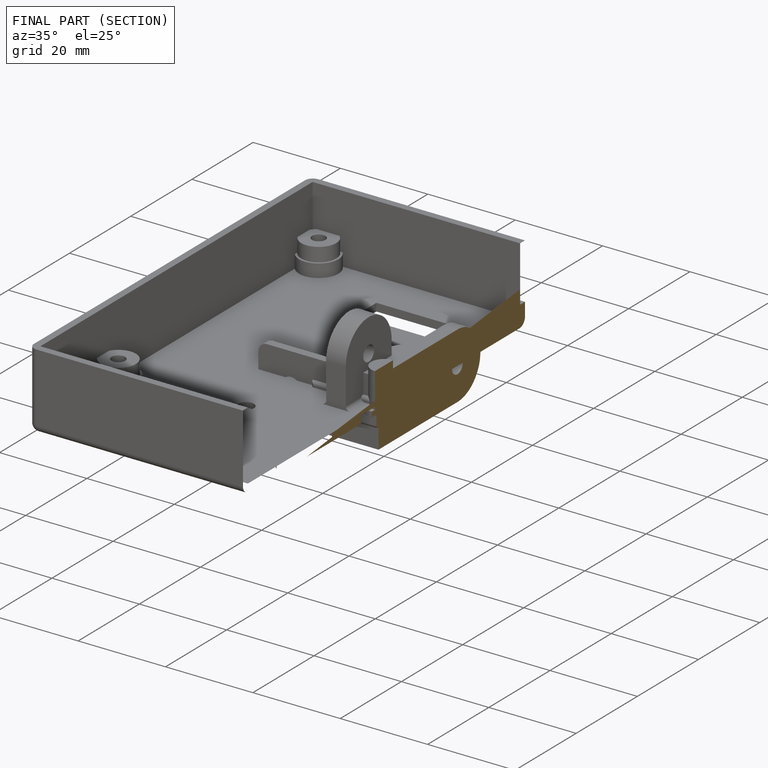
[diagram: finished part — half-section view (interior)]
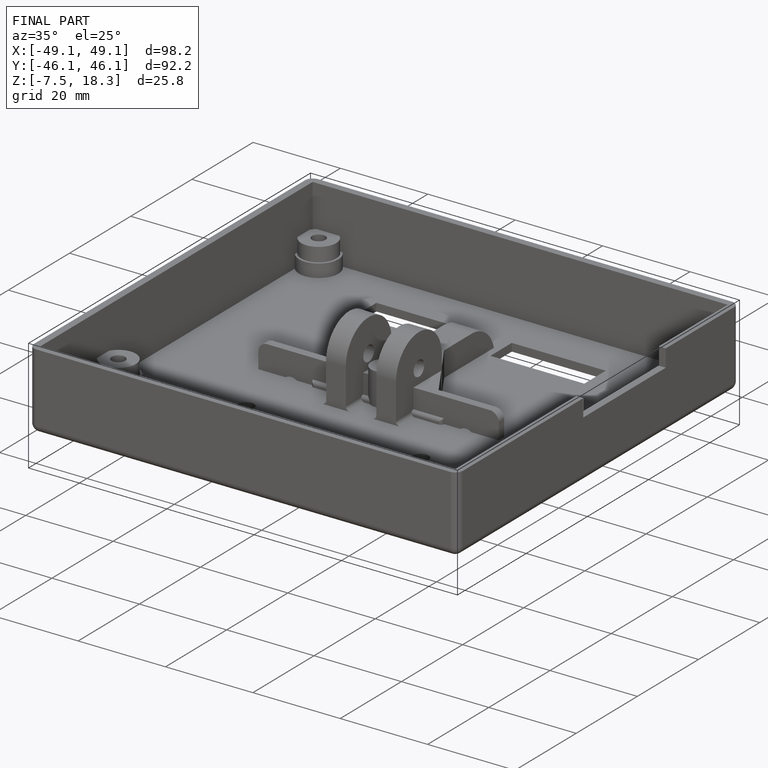
[diagram: finished part — iso view with bounding-box wireframe]
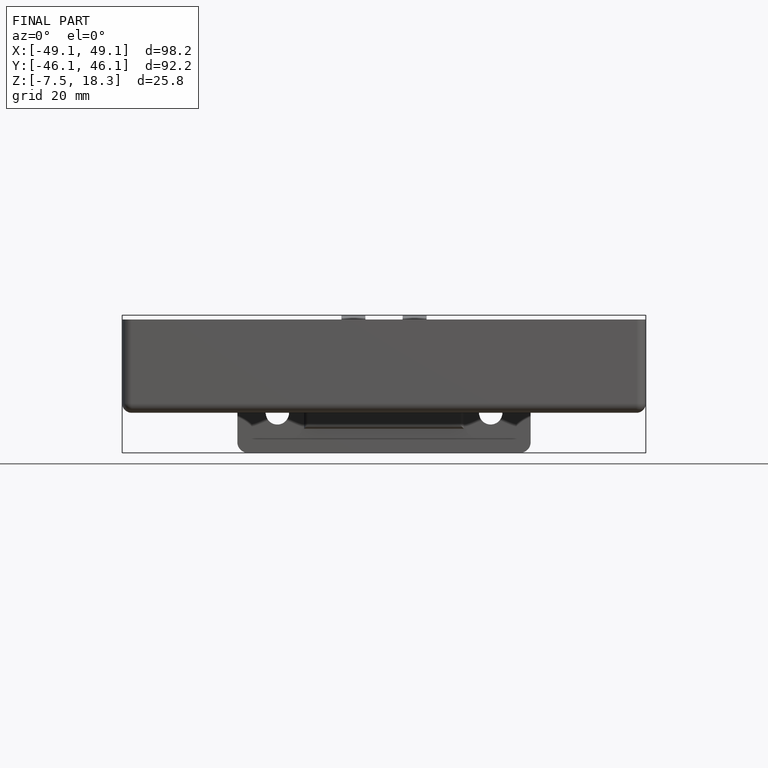
[diagram: finished part — front view with bounding-box wireframe]
